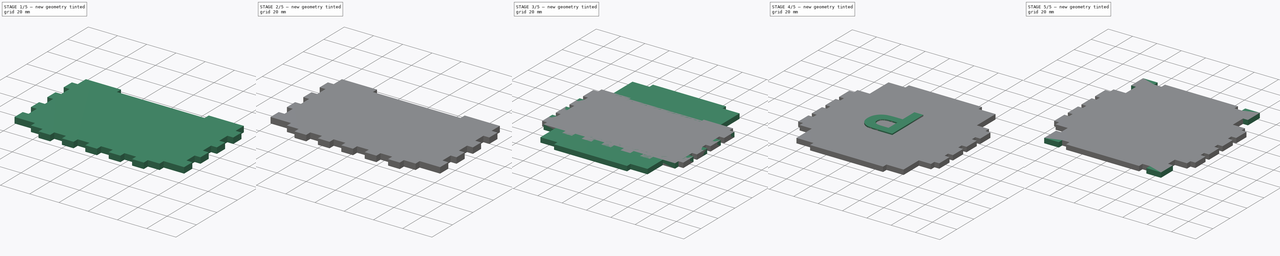
[diagram: build sequence overview — one tinted view per stage of 5, left to right]
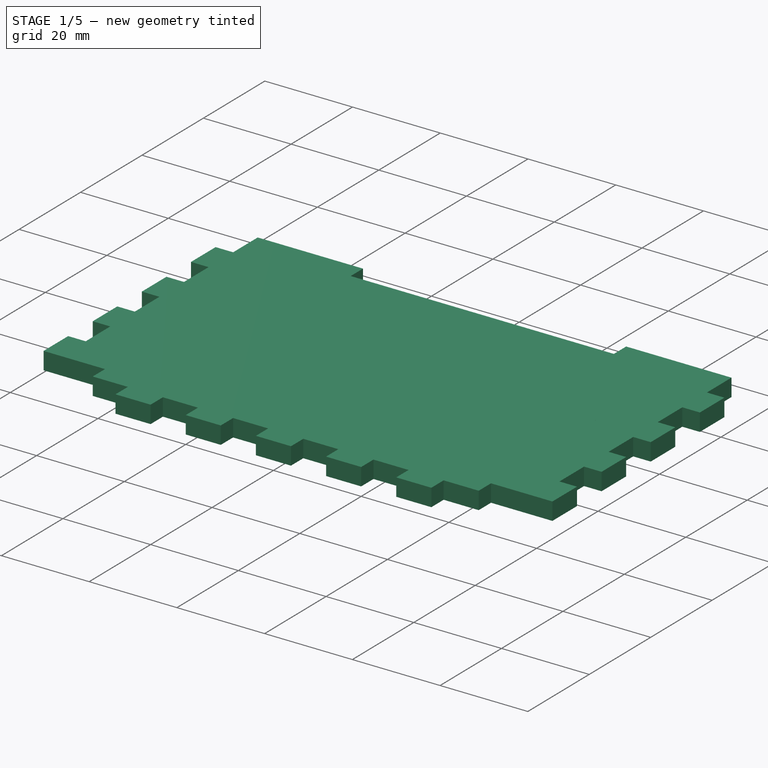
[diagram: stage 1 of 5 — iso view after this stage's code; geometry added in this stage tinted green]
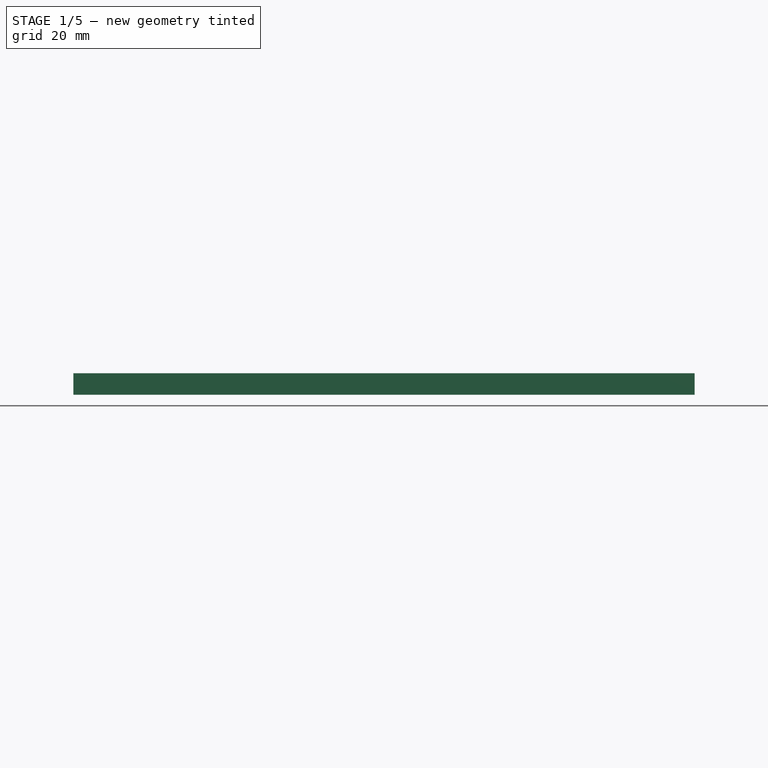
[diagram: stage 1 of 5 — front view after this stage's code; geometry added in this stage tinted green]
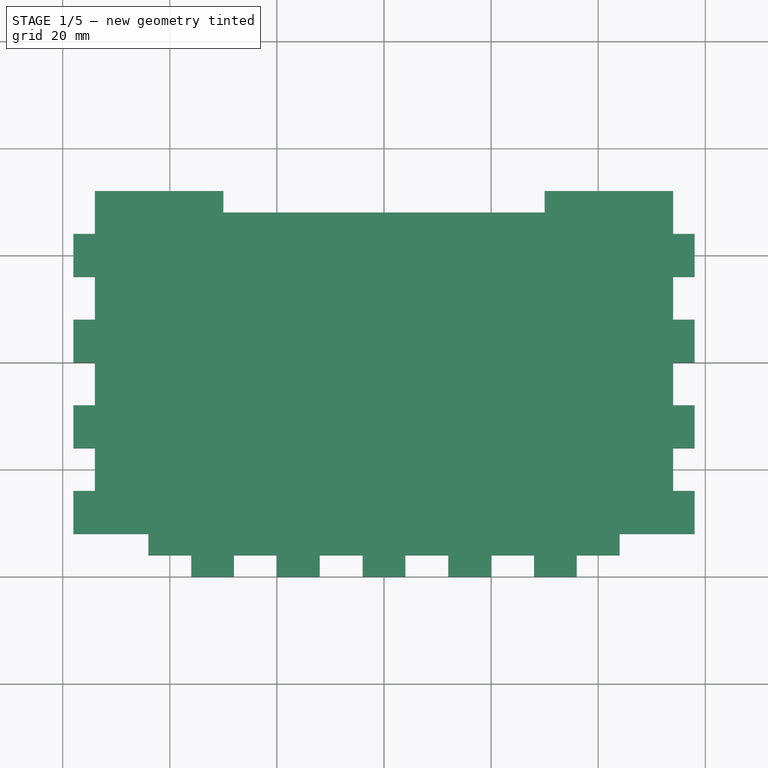
[diagram: stage 1 of 5 — top view after this stage's code; geometry added in this stage tinted green]
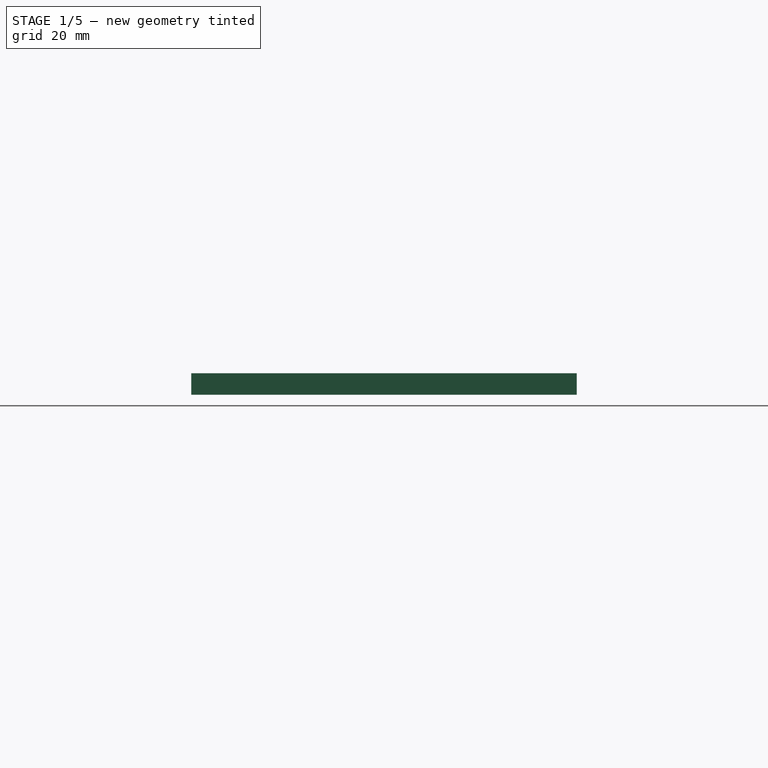
[diagram: stage 1 of 5 — right view after this stage's code; geometry added in this stage tinted green]
FCSTD DOCUMENT  (FreeCAD 0.14R3700 (Git))
Label: cubetto3D
License: CC-BY 3.0
LicenseURL: http://creativecommons.org/licenses/by/3.0/
objects: Sketcher::SketchObject×13, PartDesign::Pad×10, PartDesign::Pocket×3, Part::Extrusion×2, Part::Cut×2
note: 43 computed .brp shape members not serialized (recipe doc carries the construction recipe); baked Part::Feature solids carry a one-line shape summary decoded from their .brp

FEATURE [Sketcher::SketchObject] Sketch009
  sketch-geometry (56):
    g0: LineSegment StartX=-48 StartY=28 StartZ=0 EndX=-30 EndY=28 EndZ=0
    g1: LineSegment StartX=-30 StartY=28 StartZ=0 EndX=-30 EndY=24 EndZ=0
    g2: LineSegment StartX=-30 StartY=24 StartZ=0 EndX=30 EndY=24 EndZ=0
    g3: LineSegment StartX=30 StartY=24 StartZ=0 EndX=30 EndY=28 EndZ=0
    g4: LineSegment StartX=30 StartY=28 StartZ=0 EndX=48 EndY=28 EndZ=0
    g5: LineSegment StartX=48 StartY=28 StartZ=0 EndX=48 EndY=20 EndZ=0
    g6: LineSegment StartX=48 StartY=20 StartZ=0 EndX=44 EndY=20 EndZ=0
    g7: LineSegment StartX=44 StartY=20 StartZ=0 EndX=44 EndY=12 EndZ=0
    g8: LineSegment StartX=44 StartY=12 StartZ=0 EndX=48 EndY=12 EndZ=0
    g9: LineSegment StartX=48 StartY=12 StartZ=0 EndX=48 EndY=4 EndZ=0
    g10: LineSegment StartX=48 StartY=4 StartZ=0 EndX=44 EndY=4 EndZ=0
    g11: LineSegment StartX=44 StartY=4 StartZ=0 EndX=44 EndY=-4 EndZ=0
    g12: LineSegment StartX=44 StartY=-4 StartZ=0 EndX=48 EndY=-4 EndZ=0
    g13: LineSegment StartX=48 StartY=-4 StartZ=0 EndX=48 EndY=-12 EndZ=0
    g14: LineSegment StartX=48 StartY=-12 StartZ=0 EndX=44 EndY=-12 EndZ=0
    g15: LineSegment StartX=44 StartY=-12 StartZ=0 EndX=44 EndY=-20 EndZ=0
    g16: LineSegment StartX=44 StartY=-20 StartZ=0 EndX=48 EndY=-20 EndZ=0
    g17: LineSegment StartX=48 StartY=-20 StartZ=0 EndX=48 EndY=-28 EndZ=0
    g18: LineSegment StartX=48 StartY=-28 StartZ=0 EndX=44 EndY=-28 EndZ=0
    g19: LineSegment StartX=44 StartY=-28 StartZ=0 EndX=44 EndY=-36 EndZ=0
    g20: LineSegment StartX=44 StartY=-36 StartZ=0 EndX=36 EndY=-36 EndZ=0
    g21: LineSegment StartX=36 StartY=-36 StartZ=0 EndX=36 EndY=-40 EndZ=0
    g22: LineSegment StartX=36 StartY=-40 StartZ=0 EndX=28 EndY=-40 EndZ=0
    g23: LineSegment StartX=28 StartY=-40 StartZ=0 EndX=28 EndY=-36 EndZ=0
    g24: LineSegment StartX=28 StartY=-36 StartZ=0 EndX=20 EndY=-36 EndZ=0
    g25: LineSegment StartX=20 StartY=-36 StartZ=0 EndX=20 EndY=-40 EndZ=0
    g26: LineSegment StartX=20 StartY=-40 StartZ=0 EndX=12 EndY=-40 EndZ=0
    g27: LineSegment StartX=12 StartY=-40 StartZ=0 EndX=12 EndY=-36 EndZ=0
    g28: LineSegment StartX=12 StartY=-36 StartZ=0 EndX=4 EndY=-36 EndZ=0
    g29: LineSegment StartX=4 StartY=-36 StartZ=0 EndX=4 EndY=-40 EndZ=0
    g30: LineSegment StartX=4 StartY=-40 StartZ=0 EndX=-4 EndY=-40 EndZ=0
    g31: LineSegment StartX=-4 StartY=-40 StartZ=0 EndX=-4 EndY=-36 EndZ=0
    g32: LineSegment StartX=-4 StartY=-36 StartZ=0 EndX=-12 EndY=-36 EndZ=0
    g33: LineSegment StartX=-12 StartY=-36 StartZ=0 EndX=-12 EndY=-40 EndZ=0
    g34: LineSegment StartX=-12 StartY=-40 StartZ=0 EndX=-20 EndY=-40 EndZ=0
    g35: LineSegment StartX=-20 StartY=-40 StartZ=0 EndX=-20 EndY=-36 EndZ=0
    g36: LineSegment StartX=-20 StartY=-36 StartZ=0 EndX=-28 EndY=-36 EndZ=0
    g37: LineSegment StartX=-28 StartY=-36 StartZ=0 EndX=-28 EndY=-40 EndZ=0
    g38: LineSegment StartX=-28 StartY=-40 StartZ=0 EndX=-36 EndY=-40 EndZ=0
    g39: LineSegment StartX=-36 StartY=-40 StartZ=0 EndX=-36 EndY=-36 EndZ=0
    g40: LineSegment StartX=-36 StartY=-36 StartZ=0 EndX=-44 EndY=-36 EndZ=0
    g41: LineSegment StartX=-44 StartY=-36 StartZ=0 EndX=-44 EndY=-28 EndZ=0
    g42: LineSegment StartX=-44 StartY=-28 StartZ=0 EndX=-48 EndY=-28 EndZ=0
    g43: LineSegment StartX=-48 StartY=-28 StartZ=0 EndX=-48 EndY=-20 EndZ=0
    g44: LineSegment StartX=-48 StartY=-20 StartZ=0 EndX=-44 EndY=-20 EndZ=0
    g45: LineSegment StartX=-44 StartY=-20 StartZ=0 EndX=-44 EndY=-12 EndZ=0
    g46: LineSegment StartX=-44 StartY=-12 StartZ=0 EndX=-48 EndY=-12 EndZ=0
    g47: LineSegment StartX=-48 StartY=-12 StartZ=0 EndX=-48 EndY=-4 EndZ=0
    g48: LineSegment StartX=-48 StartY=-4 StartZ=0 EndX=-44 EndY=-4 EndZ=0
    g49: LineSegment StartX=-44 StartY=-4 StartZ=0 EndX=-44 EndY=4 EndZ=0
    g50: LineSegment StartX=-44 StartY=4 StartZ=0 EndX=-48 EndY=4 EndZ=0
    g51: LineSegment StartX=-48 StartY=4 StartZ=0 EndX=-48 EndY=12 EndZ=0
    g52: LineSegment StartX=-48 StartY=12 StartZ=0 EndX=-44 EndY=12 EndZ=0
    g53: LineSegment StartX=-44 StartY=12 StartZ=0 EndX=-44 EndY=20 EndZ=0
    g54: LineSegment StartX=-44 StartY=20 StartZ=0 EndX=-48 EndY=20 EndZ=0
    g55: LineSegment StartX=-48 StartY=20 StartZ=0 EndX=-48 EndY=28 EndZ=0
  constraints (168):
    c: Horizontal(g0)
    c: Coincident(g0,g1)
    c: Vertical(g1)
    c: Coincident(g1,g2)
    c: Horizontal(g2)
    c: Coincident(g2,g3)
    c: Vertical(g3)
    c: Coincident(g3,g4)
    c: Horizontal(g4)
    c: Coincident(g4,g5)
    c: Vertical(g5)
    c: Coincident(g5,g6)
    c: Horizontal(g6)
    c: Coincident(g6,g7)
    c: Vertical(g7)
    c: Coincident(g7,g8)
    c: Horizontal(g8)
    c: Coincident(g8,g9)
    c: Vertical(g9)
    c: Coincident(g9,g10)
    c: Horizontal(g10)
    c: Coincident(g10,g11)
    c: Vertical(g11)
    c: Coincident(g11,g12)
    c: Coincident(g12,g13)
    c: Vertical(g13)
    c: Coincident(g13,g14)
    c: Horizontal(g14)
    c: Coincident(g14,g15)
    c: Vertical(g15)
    c: Coincident(g15,g16)
    c: Horizontal(g16)
    c: Coincident(g16,g17)
    c: Vertical(g17)
    c: Coincident(g17,g18)
    c: Horizontal(g18)
    c: Coincident(g18,g19)
    c: Vertical(g19)
    c: Equal(g5,g13)
    c: Equal(g13,g9)
    c: Equal(g9,g17)
    c: Equal(g6,g8)
    c: Equal(g8,g10)
    c: Equal(g10,g12)
    c: Equal(g12,g14)
    c: Equal(g14,g16)
    c: Equal(g16,g18)
    c: Equal(g7,g11)
    c: Equal(g11,g15)
    c: DistanceY(g5) = -8
    c: Horizontal(g12)
    c: DistanceX(g6) = -4
    c: DistanceY(g7) = -8
    c: DistanceY(g19) = -8
    c: Equal(g1,g3)
    c: Equal(g4,g0)
    c: DistanceX(g4) = 18
    c: DistanceY(g1) = -4
    c: DistanceX(g2) = 60
    c: Coincident(g19,g20)
    c: Horizontal(g20)
    c: Coincident(g20,g21)
    c: Vertical(g21)
    c: Coincident(g21,g22)
    c: Horizontal(g22)
    c: Coincident(g22,g23)
    c: Coincident(g23,g24)
    c: Coincident(g24,g25)
    c: Coincident(g25,g26)
    c: Horizontal(g26)
    c: Coincident(g26,g27)
    c: Vertical(g27)
    c: Coincident(g27,g28)
    c: Horizontal(g28)
    c: Coincident(g28,g29)
    c: Coincident(g29,g30)
    c: Horizontal(g30)
    c: Coincident(g30,g31)
    c: Vertical(g31)
    c: Coincident(g31,g32)
    c: Coincident(g32,g33)
    c: Vertical(g33)
    c: Coincident(g33,g34)
    c: Coincident(g34,g35)
    c: Coincident(g35,g36)
    c: Coincident(g36,g37)
    c: Coincident(g37,g38)
    c: Coincident(g38,g39)
    c: Vertical(g39)
    c: Coincident(g39,g40)
    c: Horizontal(g40)
    c: Coincident(g40,g41)
    c: Vertical(g41)
    c: Horizontal(g32)
    c: Horizontal(g36)
    c: Horizontal(g24)
    c: Vertical(g37)
    c: Vertical(g29)
    c: Vertical(g23)
    c: Vertical(g25)
    c: Vertical(g35)
    c: Horizontal(g34)
    c: Horizontal(g38)
    c: Equal(g39,g37)
    c: Equal(g37,g35)
    c: Equal(g35,g33)
    c: Equal(g33,g31)
    c: Equal(g31,g29)
    c: Equal(g29,g27)
    c: Equal(g27,g25)
    c: Equal(g25,g23)
    c: Equal(g23,g21)
    c: DistanceY(g21) = -4
    c: Equal(g24,g28)
    c: Equal(g28,g32)
    c: Equal(g32,g36)
    c: Equal(g36,g40)
    c: Equal(g40,g20)
    c: Equal(g22,g26)
    c: Equal(g26,g30)
    c: Equal(g30,g34)
    c: Equal(g34,g38)
    c: DistanceX(g22) = -8
    c: DistanceX(g24) = -8
    c: DistanceY(g41) = 8
    c: Coincident(g41,g42)
    c: Coincident(g42,g43)
    c: Coincident(g43,g44)
    c: Horizontal(g44)
    c: Coincident(g44,g45)
    c: Vertical(g45)
    c: Coincident(g45,g46)
    c: Horizontal(g46)
    c: Coincident(g46,g47)
    c: Vertical(g47)
    c: Coincident(g47,g48)
    c: Horizontal(g48)
    c: Coincident(g48,g49)
    c: Vertical(g49)
    c: Coincident(g49,g50)
    c: Horizontal(g50)
    c: Coincident(g50,g51)
    c: Vertical(g51)
    c: Coincident(g51,g52)
    c: Horizontal(g52)
    c: Coincident(g52,g53)
    c: Vertical(g53)
    c: Coincident(g53,g54)
    c: Horizontal(g54)
    c: Coincident(g55,g54)
    c: Coincident(g55,g0)
    c: Vertical(g55)
    c: Vertical(g43)
    c: Horizontal(g42)
    c: Equal(g51,g55)
    c: Equal(g55,g47)
    c: Equal(g47,g43)
    c: Equal(g54,g52)
    c: Equal(g52,g50)
    c: Equal(g50,g48)
    c: Equal(g48,g46)
    c: Equal(g46,g44)
    c: Equal(g44,g42)
    c: Equal(g53,g49)
    c: Equal(g49,g45)
    c: Equal(g45,g41)
    c: Symmetric(g2,g1,g-2)
    c: Symmetric(g17,g4,g-1)
FEATURE [PartDesign::Pad] Pad007
  Length = 4
  Length2 = 100
  Sketch = -> Sketch009
  Type = 0
FEATURE [Sketcher::SketchObject] Sketch011
  sketch-geometry (40):
    g0: LineSegment StartX=-54 StartY=32 StartZ=0 EndX=-30 EndY=32 EndZ=0
    g1: LineSegment StartX=-30 StartY=32 StartZ=0 EndX=-30 EndY=28 EndZ=0
    g2: LineSegment StartX=-30 StartY=28 StartZ=0 EndX=30 EndY=28 EndZ=0
    g3: LineSegment StartX=30 StartY=28 StartZ=0 EndX=30 EndY=32 EndZ=0
    g4: LineSegment StartX=30 StartY=32 StartZ=0 EndX=54 EndY=32 EndZ=0
    g5: LineSegment StartX=54 StartY=32 StartZ=0 EndX=54 EndY=24 EndZ=0
    g6: LineSegment StartX=54 StartY=24 StartZ=0 EndX=58 EndY=24 EndZ=0
    g7: LineSegment StartX=58 StartY=24 StartZ=0 EndX=58 EndY=16 EndZ=0
    g8: LineSegment StartX=58 StartY=16 StartZ=0 EndX=54 EndY=16 EndZ=0
    g9: LineSegment StartX=54 StartY=16 StartZ=0 EndX=54 EndY=8 EndZ=0
    g10: LineSegment StartX=54 StartY=8 StartZ=0 EndX=58 EndY=8 EndZ=0
    g11: LineSegment StartX=58 StartY=8 StartZ=0 EndX=58 EndY=0 EndZ=0
    g12: LineSegment StartX=58 StartY=0 StartZ=0 EndX=54 EndY=0 EndZ=0
    g13: LineSegment StartX=54 StartY=0 StartZ=0 EndX=54 EndY=-8 EndZ=0
    g14: LineSegment StartX=54 StartY=-8 StartZ=0 EndX=58 EndY=-8 EndZ=0
    g15: LineSegment StartX=58 StartY=-8 StartZ=0 EndX=58 EndY=-16 EndZ=0
    g16: LineSegment StartX=58 StartY=-16 StartZ=0 EndX=54 EndY=-16 EndZ=0
    g17: LineSegment StartX=54 StartY=-16 StartZ=0 EndX=54 EndY=-24 EndZ=0
    g18: LineSegment StartX=54 StartY=-24 StartZ=0 EndX=58 EndY=-24 EndZ=0
    g19: LineSegment StartX=58 StartY=-24 StartZ=0 EndX=58 EndY=-32 EndZ=0
    g20: LineSegment StartX=58 StartY=-32 StartZ=0 EndX=44 EndY=-32 EndZ=0
    g21: LineSegment StartX=44 StartY=-32 StartZ=0 EndX=44 EndY=-36 EndZ=0
    g22: LineSegment StartX=44 StartY=-36 StartZ=0 EndX=-44 EndY=-36 EndZ=0
    g23: LineSegment StartX=-44 StartY=-36 StartZ=0 EndX=-44 EndY=-32 EndZ=0
    g24: LineSegment StartX=-44 StartY=-32 StartZ=0 EndX=-58 EndY=-32 EndZ=0
    g25: LineSegment StartX=-58 StartY=-32 StartZ=0 EndX=-58 EndY=-24 EndZ=0
    g26: LineSegment StartX=-58 StartY=-24 StartZ=0 EndX=-54 EndY=-24 EndZ=0
    g27: LineSegment StartX=-54 StartY=-24 StartZ=0 EndX=-54 EndY=-16 EndZ=0
    g28: LineSegment StartX=-54 StartY=-16 StartZ=0 EndX=-58 EndY=-16 EndZ=0
    g29: LineSegment StartX=-58 StartY=-16 StartZ=0 EndX=-58 EndY=-8 EndZ=0
    g30: LineSegment StartX=-58 StartY=-8 StartZ=0 EndX=-54 EndY=-8 EndZ=0
    g31: LineSegment StartX=-54 StartY=-8 StartZ=0 EndX=-54 EndY=0 EndZ=0
    g32: LineSegment StartX=-54 StartY=0 StartZ=0 EndX=-58 EndY=0 EndZ=0
    g33: LineSegment StartX=-58 StartY=0 StartZ=0 EndX=-58 EndY=8 EndZ=0
    g34: LineSegment StartX=-58 StartY=8 StartZ=0 EndX=-54 EndY=8 EndZ=0
    g35: LineSegment StartX=-54 StartY=8 StartZ=0 EndX=-54 EndY=16 EndZ=0
    g36: LineSegment StartX=-54 StartY=16 StartZ=0 EndX=-58 EndY=16 EndZ=0
    g37: LineSegment StartX=-58 StartY=16 StartZ=0 EndX=-58 EndY=24 EndZ=0
    g38: LineSegment StartX=-58 StartY=24 StartZ=0 EndX=-54 EndY=24 EndZ=0
    g39: LineSegment StartX=-54 StartY=24 StartZ=0 EndX=-54 EndY=32 EndZ=0
  constraints (120):
    c: Horizontal(g0)
    c: Coincident(g0,g1)
    c: Vertical(g1)
    c: Coincident(g1,g2)
    c: Horizontal(g2)
    c: Coincident(g2,g3)
    c: Vertical(g3)
    c: Coincident(g3,g4)
    c: Horizontal(g4)
    c: Coincident(g4,g5)
    c: Vertical(g5)
    c: Coincident(g5,g6)
    c: Coincident(g6,g7)
    c: Coincident(g7,g8)
    c: Coincident(g8,g9)
    c: Coincident(g9,g10)
    c: Horizontal(g10)
    c: Coincident(g10,g11)
    c: Vertical(g11)
    c: Coincident(g11,g12)
    c: Coincident(g12,g13)
    c: Coincident(g13,g14)
    c: Coincident(g14,g15)
    c: Coincident(g15,g16)
    c: Coincident(g16,g17)
    c: Vertical(g17)
    c: Equal(g0,g4)
    c: Equal(g3,g1)
    c: DistanceX(g0) = 24
    c: DistanceX(g2) = 60
    c: DistanceY(g3) = 4
    c: Vertical(g9)
    c: Vertical(g13)
    c: Equal(g5,g9)
    c: Equal(g9,g13)
    c: Equal(g13,g17)
    c: Horizontal(g6)
    c: Horizontal(g8)
    c: Horizontal(g12)
    c: Horizontal(g14)
    c: Horizontal(g16)
    c: Vertical(g7)
    c: Vertical(g15)
    c: Equal(g6,g8)
    c: Equal(g8,g10)
    c: Equal(g10,g12)
    c: Equal(g12,g14)
    c: Equal(g14,g16)
    c: DistanceX(g6) = 4
    c: Equal(g7,g11)
    c: Equal(g11,g15)
    c: DistanceY(g7) = -8
    c: DistanceY(g5) = -8
    c: Coincident(g17,g18)
    c: Horizontal(g18)
    c: Coincident(g18,g19)
    c: Vertical(g19)
    c: Coincident(g19,g20)
    c: Horizontal(g20)
    c: Coincident(g20,g21)
    c: Vertical(g21)
    c: Coincident(g21,g22)
    c: Horizontal(g22)
    c: Coincident(g22,g23)
    c: Vertical(g23)
    c: Coincident(g23,g24)
    c: Horizontal(g24)
    c: Equal(g24,g20)
    c: Equal(g16,g18)
    c: Equal(g19,g15)
    c: DistanceX(g20) = -14
    c: DistanceY(g21) = -4
    c: DistanceX(g22) = -88
    c: Coincident(g24,g25)
    c: Vertical(g25)
    c: Coincident(g25,g26)
    c: Coincident(g26,g27)
    c: Coincident(g27,g28)
    c: Coincident(g28,g29)
    c: Vertical(g29)
    c: Coincident(g29,g30)
    c: Coincident(g30,g31)
    c: Coincident(g31,g32)
    c: Coincident(g32,g33)
    c: Vertical(g33)
    c: Coincident(g33,g34)
    c: Coincident(g34,g35)
    c: Coincident(g35,g36)
    c: Coincident(g36,g37)
    c: Coincident(g37,g38)
    c: Horizontal(g38)
    c: Coincident(g38,g39)
    c: Coincident(g39,g0)
    c: Horizontal(g36)
    c: Horizontal(g34)
    c: Horizontal(g32)
    c: Horizontal(g30)
    c: Horizontal(g28)
    c: Horizontal(g26)
    c: Vertical(g39)
    c: Vertical(g35)
    c: Vertical(g31)
    c: Vertical(g27)
    c: Equal(g26,g28)
    c: Equal(g28,g30)
    c: Equal(g30,g32)
    c: Equal(g32,g34)
    c: Equal(g34,g36)
    c: Equal(g36,g38)
    c: Vertical(g37)
    c: Equal(g37,g33)
    c: Equal(g33,g29)
    c: Equal(g29,g25)
    c: Equal(g35,g31)
    c: Equal(g31,g27)
    c: DistanceY(g25) = 8
    c: DistanceY(g31) = 8
    c: DistanceY(g39) = 8
    c: Symmetric(g1,g2,g-2)
    c: Symmetric(g38,g26,g-1)
FEATURE [PartDesign::Pad] Pad008  label="cubetto-4mm(8)"
  Length = 4
  Length2 = 100
  Sketch = -> Sketch011
  Type = 0
FEATURE [Sketcher::SketchObject] Sketch012
  sketch-geometry (12):
    g0: LineSegment StartX=-30.5 StartY=4 StartZ=0 EndX=-30.5 EndY=-4 EndZ=0
    g1: LineSegment StartX=-30.5 StartY=-4 StartZ=0 EndX=30.5 EndY=-4 EndZ=0
    g2: LineSegment StartX=30.5 StartY=-4 StartZ=0 EndX=30.5 EndY=4 EndZ=0
    g3: LineSegment StartX=30.5 StartY=4 StartZ=0 EndX=18.5 EndY=4 EndZ=0
    g4: LineSegment StartX=18.5 StartY=4 StartZ=0 EndX=18.5 EndY=7 EndZ=0
    g5: LineSegment StartX=18.5 StartY=7 StartZ=0 EndX=12.5 EndY=7 EndZ=0
    g6: LineSegment StartX=12.5 StartY=7 StartZ=0 EndX=12.5 EndY=4 EndZ=0
    g7: LineSegment StartX=12.5 StartY=4 StartZ=0 EndX=-12.5 EndY=4 EndZ=0
    g8: LineSegment StartX=-12.5 StartY=4 StartZ=0 EndX=-12.5 EndY=7 EndZ=0
    g9: LineSegment StartX=-12.5 StartY=7 StartZ=0 EndX=-18.5 EndY=7 EndZ=0
    g10: LineSegment StartX=-18.5 StartY=7 StartZ=0 EndX=-18.5 EndY=4 EndZ=0
    g11: LineSegment StartX=-18.5 StartY=4 StartZ=0 EndX=-30.5 EndY=4 EndZ=0
  constraints (37):
    c: Vertical(g0)
    c: Coincident(g0,g1)
    c: Horizontal(g1)
    c: Coincident(g1,g2)
    c: Vertical(g2)
    c: Coincident(g2,g3)
    c: Horizontal(g3)
    c: Coincident(g3,g4)
    c: Vertical(g4)
    c: Coincident(g4,g5)
    c: Horizontal(g5)
    c: Coincident(g5,g6)
    c: Vertical(g6)
    c: Coincident(g6,g7)
    c: Horizontal(g7)
    c: Coincident(g7,g8)
    c: Vertical(g8)
    c: Coincident(g8,g9)
    c: Horizontal(g9)
    c: Coincident(g9,g10)
    c: Coincident(g10,g11)
    c: Coincident(g11,g0)
    c: Horizontal(g11)
    c: Vertical(g10)
    c: Equal(g9,g5)
    c: Equal(g4,g6)
    c: Equal(g6,g8)
    c: Equal(g8,g10)
    c: Equal(g3,g11)
    c: Equal(g2,g0)
    c: DistanceX(g1) = 61
    c: DistanceY(g2) = 8
    c: DistanceX(g11) = -12
    c: DistanceY(g8) = 3
    c: DistanceX(g5) = -6
    c: Symmetric(g0,g2,g-2)
    c: Symmetric(g1,g2,g-1)
FEATURE [PartDesign::Pad] Pad009  label="pieza"
  Length = 4
  Length2 = 100
  Sketch = -> Sketch012
  Type = 0
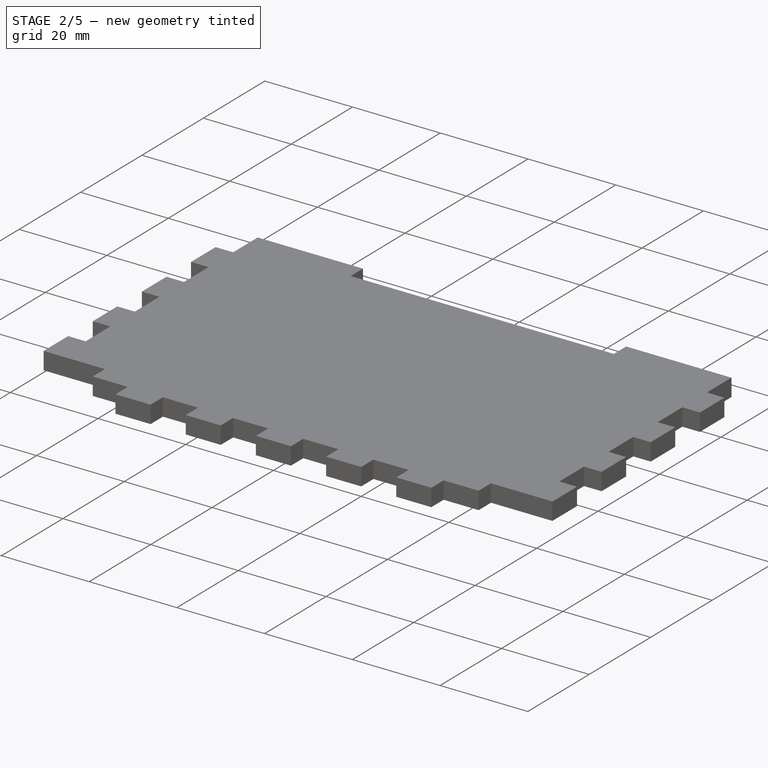
[diagram: stage 2 of 5 — iso view after this stage's code; geometry added in this stage tinted green]
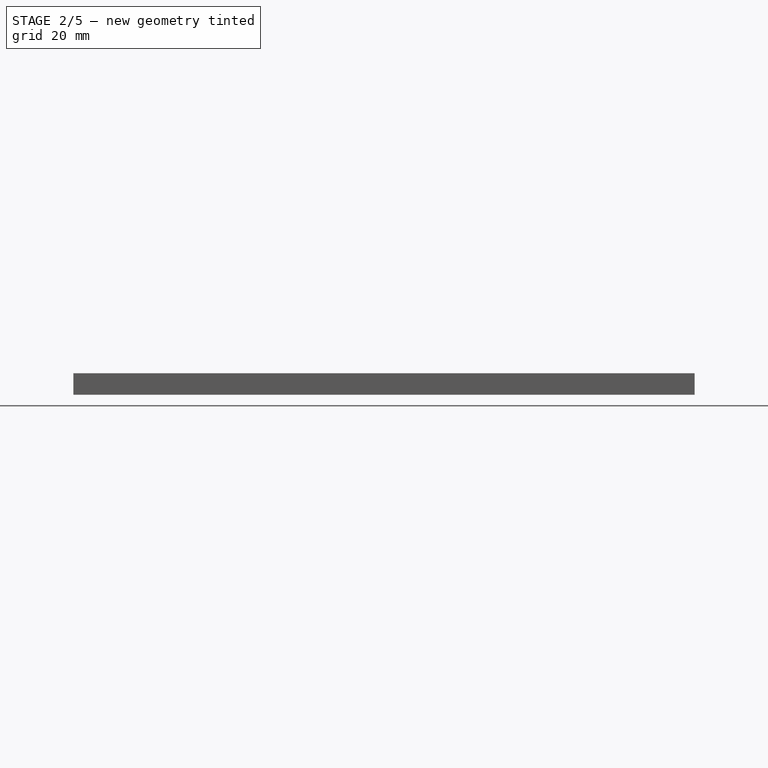
[diagram: stage 2 of 5 — front view after this stage's code; geometry added in this stage tinted green]
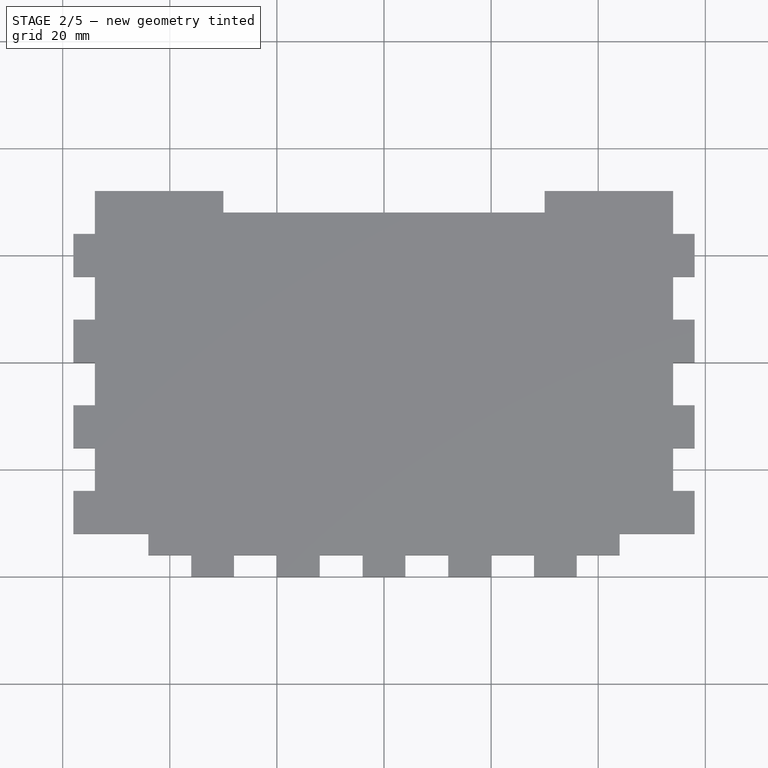
[diagram: stage 2 of 5 — top view after this stage's code; geometry added in this stage tinted green]
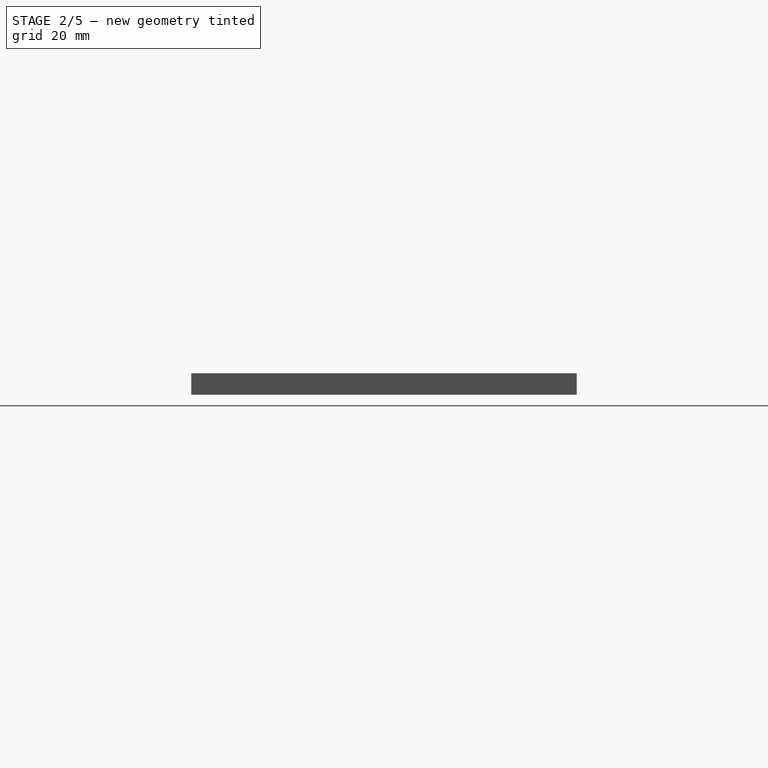
[diagram: stage 2 of 5 — right view after this stage's code; geometry added in this stage tinted green]
FEATURE [Sketcher::SketchObject] Sketch006
  sketch-geometry (20):
    g0: LineSegment StartX=15.5 StartY=27.5 StartZ=0 EndX=-15.5 EndY=27.5 EndZ=0
    g1: LineSegment StartX=-15.5 StartY=27.5 StartZ=0 EndX=-15.5 EndY=19.3 EndZ=0
    g2: LineSegment StartX=-15.5 StartY=19.3 StartZ=0 EndX=-0.5 EndY=19.3 EndZ=0
    g3: LineSegment StartX=-0.5 StartY=19.3 StartZ=0 EndX=-0.5 EndY=16.6 EndZ=0
    g4: LineSegment StartX=-0.5 StartY=16.6 StartZ=0 EndX=-15.5 EndY=16.6 EndZ=0
    g5: LineSegment StartX=-15.5 StartY=16.6 StartZ=0 EndX=-15.5 EndY=-16.6 EndZ=0
    g6: LineSegment StartX=-15.5 StartY=-16.6 StartZ=0 EndX=-0.5 EndY=-16.6 EndZ=0
    g7: LineSegment StartX=-0.5 StartY=-16.6 StartZ=0 EndX=-0.5 EndY=-19.3 EndZ=0
    g8: LineSegment StartX=-0.5 StartY=-19.3 StartZ=0 EndX=-15.5 EndY=-19.3 EndZ=0
    g9: LineSegment StartX=-15.5 StartY=-19.3 StartZ=0 EndX=-15.5 EndY=-27.5 EndZ=0
    g10: LineSegment StartX=-15.5 StartY=-27.5 StartZ=0 EndX=15.5 EndY=-27.5 EndZ=0
    g11: LineSegment StartX=15.5 StartY=-27.5 StartZ=0 EndX=15.5 EndY=-19.5 EndZ=0
    g12: LineSegment StartX=15.5 StartY=-19.5 StartZ=0 EndX=7.5 EndY=-19.5 EndZ=0
    g13: LineSegment StartX=7.5 StartY=-19.5 StartZ=0 EndX=7.5 EndY=-4 EndZ=0
    g14: LineSegment StartX=7.5 StartY=-4 StartZ=0 EndX=15.5 EndY=-4 EndZ=0
    g15: LineSegment StartX=15.5 StartY=-4 StartZ=0 EndX=15.5 EndY=4 EndZ=0
    g16: LineSegment StartX=15.5 StartY=4 StartZ=0 EndX=7.5 EndY=4 EndZ=0
    g17: LineSegment StartX=7.5 StartY=4 StartZ=0 EndX=7.5 EndY=19.5 EndZ=0
    g18: LineSegment StartX=7.5 StartY=19.5 StartZ=0 EndX=15.5 EndY=19.5 EndZ=0
    g19: LineSegment StartX=15.5 StartY=19.5 StartZ=0 EndX=15.5 EndY=27.5 EndZ=0
  constraints (60):
    c: Horizontal(g0)
    c: Coincident(g0,g1)
    c: Vertical(g1)
    c: Coincident(g1,g2)
    c: Horizontal(g2)
    c: Coincident(g2,g3)
    c: Coincident(g3,g4)
    c: Horizontal(g4)
    c: Coincident(g4,g5)
    c: Coincident(g5,g6)
    c: Coincident(g6,g7)
    c: Vertical(g7)
    c: Coincident(g7,g8)
    c: Coincident(g8,g9)
    c: Vertical(g9)
    c: Coincident(g9,g10)
    c: Horizontal(g10)
    c: Coincident(g10,g11)
    c: Coincident(g11,g12)
    c: Horizontal(g12)
    c: Coincident(g12,g13)
    c: Vertical(g13)
    c: Coincident(g13,g14)
    c: Horizontal(g14)
    c: Coincident(g14,g15)
    c: Vertical(g15)
    c: Coincident(g15,g16)
    c: Horizontal(g16)
    c: Coincident(g16,g17)
    c: Coincident(g17,g18)
    c: Coincident(g18,g19)
    c: Coincident(g19,g0)
    c: Vertical(g19)
    c: Vertical(g11)
    c: Horizontal(g18)
    c: Horizontal(g6)
    c: Horizontal(g8)
    c: Equal(g0,g10)
    c: Equal(g2,g4)
    c: Equal(g4,g6)
    c: Equal(g6,g8)
    c: Vertical(g17)
    c: Vertical(g3)
    c: Equal(g3,g7)
    c: Equal(g19,g15)
    c: Equal(g15,g11)
    c: DistanceY(g19) = 8
    c: Equal(g16,g18)
    c: Equal(g18,g14)
    c: Equal(g14,g12)
    c: DistanceX(g16) = -8
    c: Equal(g1,g9)
    c: DistanceY(g1) = -8.2
    c: DistanceY(g3) = -2.7
    c: DistanceX(g4) = -15
    c: DistanceY(g5) = -33.2
    c: DistanceY(g17) = 15.5
    c: DistanceX(g10) = 31
    c: Symmetric(g0,g0,g-2)
    c: Symmetric(g4,g5,g-1)
FEATURE [PartDesign::Pad] Pad005  label="cubetto-4mm(4)"
  Length = 4
  Length2 = 100
  Sketch = -> Sketch006
  Type = 0
FEATURE [Sketcher::SketchObject] Sketch007
  sketch-geometry (16):
    g0: LineSegment StartX=33.7 StartY=16.25 StartZ=0 EndX=28.2 EndY=16.25 EndZ=0
    g1: LineSegment StartX=28.2 StartY=16.25 StartZ=0 EndX=28.2 EndY=19.5 EndZ=0
    g2: LineSegment StartX=28.2 StartY=19.5 StartZ=0 EndX=24.2 EndY=19.5 EndZ=0
    g3: LineSegment StartX=24.2 StartY=19.5 StartZ=0 EndX=24.2 EndY=27.5 EndZ=0
    g4: LineSegment StartX=24.2 StartY=27.5 StartZ=0 EndX=-24.2 EndY=27.5 EndZ=0
    g5: LineSegment StartX=-24.2 StartY=27.5 StartZ=0 EndX=-24.2 EndY=11.1 EndZ=0
    g6: LineSegment StartX=-24.2 StartY=11.1 StartZ=0 EndX=18.8 EndY=11.1 EndZ=0
    g7: LineSegment StartX=18.8 StartY=11.1 StartZ=0 EndX=18.8 EndY=-11.1 EndZ=0
    g8: LineSegment StartX=18.8 StartY=-11.1 StartZ=0 EndX=-24.2 EndY=-11.1 EndZ=0
    g9: LineSegment StartX=-24.2 StartY=-11.1 StartZ=0 EndX=-24.2 EndY=-27.5 EndZ=0
    g10: LineSegment StartX=-24.2 StartY=-27.5 StartZ=0 EndX=24.2 EndY=-27.5 EndZ=0
    g11: LineSegment StartX=24.2 StartY=-27.5 StartZ=0 EndX=24.2 EndY=-19.5 EndZ=0
    g12: LineSegment StartX=24.2 StartY=-19.5 StartZ=0 EndX=28.2 EndY=-19.5 EndZ=0
    g13: LineSegment StartX=28.2 StartY=-19.5 StartZ=0 EndX=28.2 EndY=-16.25 EndZ=0
    g14: LineSegment StartX=28.2 StartY=-16.25 StartZ=0 EndX=33.7 EndY=-16.25 EndZ=0
    g15: LineSegment StartX=33.7 StartY=16.25 StartZ=0 EndX=33.7 EndY=-16.25 EndZ=0
  constraints (48):
    c: Horizontal(g0)
    c: Coincident(g0,g1)
    c: Vertical(g1)
    c: Coincident(g1,g2)
    c: Horizontal(g2)
    c: Coincident(g2,g3)
    c: Vertical(g3)
    c: Coincident(g3,g4)
    c: Horizontal(g4)
    c: Coincident(g4,g5)
    c: Vertical(g5)
    c: Coincident(g5,g6)
    c: Horizontal(g6)
    c: Coincident(g6,g7)
    c: Vertical(g7)
    c: Coincident(g7,g8)
    c: Horizontal(g8)
    c: Coincident(g8,g9)
    c: Vertical(g9)
    c: Coincident(g9,g10)
    c: Horizontal(g10)
    c: Coincident(g10,g11)
    c: Vertical(g11)
    c: Coincident(g11,g12)
    c: Coincident(g12,g13)
    c: Vertical(g13)
    c: Coincident(g13,g14)
    c: Horizontal(g14)
    c: Equal(g10,g4)
    c: Equal(g5,g9)
    c: Equal(g6,g8)
    c: Equal(g3,g11)
    c: Equal(g2,g12)
    c: Horizontal(g12)
    c: Equal(g1,g13)
    c: Equal(g0,g14)
    c: Coincident(g15,g0)
    c: Coincident(g15,g14)
    c: DistanceY(g15) = -32.5
    c: DistanceY(g9) = -16.4
    c: DistanceX(g8) = -43
    c: DistanceY(g7) = -22.2
    c: DistanceY(g3) = 8
    c: DistanceX(g12) = 4
    c: DistanceX(g14) = 5.5
    c: Symmetric(g0,g14,g-1)
    c: Symmetric(g4,g3,g-2)
    c: DistanceX(g9,g14) = 57.9
FEATURE [PartDesign::Pad] Pad006
  Length = 4
  Length2 = 100
  Sketch = -> Sketch007
  Type = 0
FEATURE [Sketcher::SketchObject] Sketch008
  ExternalGeometry = -> [Pad006]
  Placement = pos=(0,0,4) rot=(0,0,1;0rad)
  Support = -> Pad006 [Face18]
  sketch-geometry (4):
    g0: LineSegment StartX=24.2 StartY=4 StartZ=0 EndX=28.2 EndY=4 EndZ=0
    g1: LineSegment StartX=28.2 StartY=4 StartZ=0 EndX=28.2 EndY=-4 EndZ=0
    g2: LineSegment StartX=28.2 StartY=-4 StartZ=0 EndX=24.2 EndY=-4 EndZ=0
    g3: LineSegment StartX=24.2 StartY=-4 StartZ=0 EndX=24.2 EndY=4 EndZ=0
  constraints (12):
    c: Coincident(g0,g1)
    c: Coincident(g1,g2)
    c: Coincident(g2,g3)
    c: Coincident(g3,g0)
    c: Horizontal(g0)
    c: Horizontal(g2)
    c: Vertical(g1)
    c: Vertical(g3)
    c: DistanceX(g0) = 4
    c: DistanceY(g3) = 8
    c: Symmetric(g0,g1,g-1)
    c: DistanceX(g0,g-3) = -9.4
FEATURE [PartDesign::Pocket] Pocket001  label="cubetto-4mm(2)"
  Length = 5
  Sketch = -> Sketch008
  Type = 0
FEATURE [Sketcher::SketchObject] Sketch010
  ExternalGeometry = -> [Pad007]
  Placement = pos=(0,0,4) rot=(0,0,1;0rad)
  Support = -> Pad007 [Face58]
  sketch-geometry (4):
    g0: Circle CenterX=-11 CenterY=-3 CenterZ=0 NormalX=0 NormalY=0 NormalZ=1 Radius=3
    g1: Circle CenterX=11 CenterY=-3 CenterZ=0 NormalX=0 NormalY=0 NormalZ=1 Radius=3
    g2: LineSegment StartX=-15.4888 StartY=-12 StartZ=0 EndX=15.4888 EndY=-12 EndZ=0
    g3: ArcOfCircle CenterX=0 CenterY=-12 CenterZ=0 NormalX=0 NormalY=0 NormalZ=1 Radius=15.4888 StartAngle=3.14159 EndAngle=6.28319
  constraints (12):
    c: Equal(g1,g0)
    c: Radius(g1) = 3
    c: DistanceX(g1,g0) = -22
    c: Symmetric(g0,g1,g-2)
    c: Horizontal(g2)
    c: Symmetric(g2,g2,g-2)
    c: PointOnObject(g3,g2)
    c: Coincident(g3,g2)
    c: Coincident(g3,g2)
    c: DistanceY(g2,g-3) = -28
    c: DistanceY(g0,g-3) = -37
    c: DistanceX(g2) = 30.9777
FEATURE [PartDesign::Pocket] Pocket002  label="cubetto-4mm(7)"
  Length = 1
  Sketch = -> Sketch010
  Type = 0
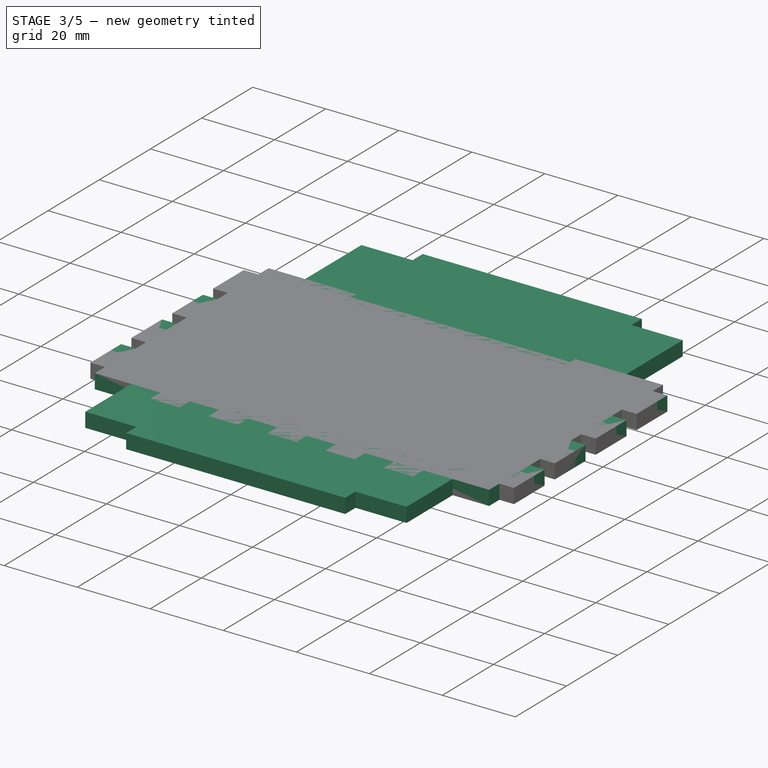
[diagram: stage 3 of 5 — iso view after this stage's code; geometry added in this stage tinted green]
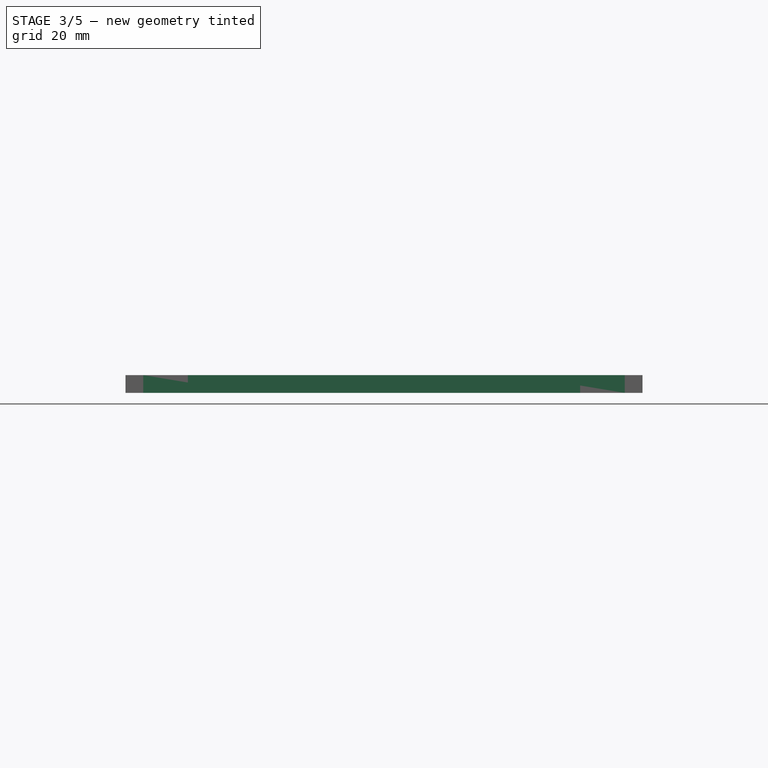
[diagram: stage 3 of 5 — front view after this stage's code; geometry added in this stage tinted green]
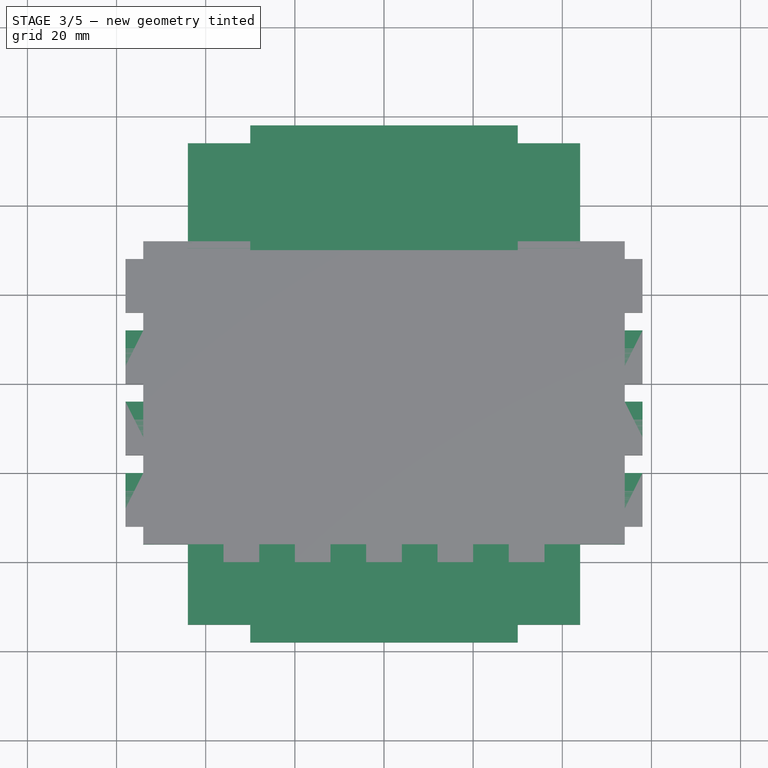
[diagram: stage 3 of 5 — top view after this stage's code; geometry added in this stage tinted green]
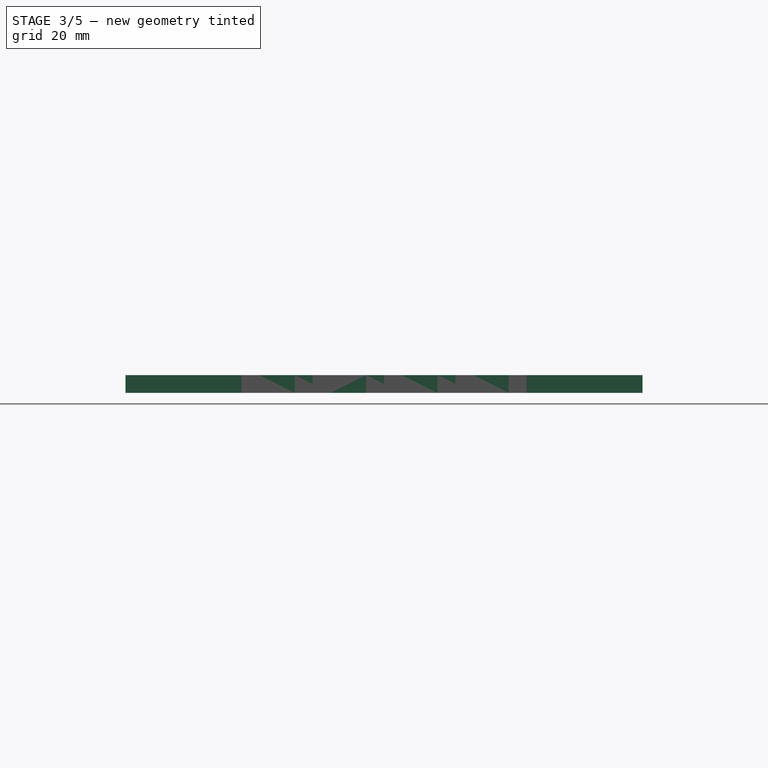
[diagram: stage 3 of 5 — right view after this stage's code; geometry added in this stage tinted green]
FEATURE [Sketcher::SketchObject] Sketch003
  sketch-geometry (40):
    g0: LineSegment StartX=58 StartY=28 StartZ=0 EndX=44 EndY=28 EndZ=0
    g1: LineSegment StartX=44 StartY=28 StartZ=0 EndX=44 EndY=32 EndZ=0
    g2: LineSegment StartX=44 StartY=32 StartZ=0 EndX=-44 EndY=32 EndZ=0
    g3: LineSegment StartX=-44 StartY=32 StartZ=0 EndX=-44 EndY=28 EndZ=0
    g4: LineSegment StartX=-44 StartY=28 StartZ=0 EndX=-58 EndY=28 EndZ=0
    g5: LineSegment StartX=-58 StartY=28 StartZ=0 EndX=-58 EndY=20 EndZ=0
    g6: LineSegment StartX=-58 StartY=20 StartZ=0 EndX=-54 EndY=20 EndZ=0
    g7: LineSegment StartX=-54 StartY=20 StartZ=0 EndX=-54 EndY=12 EndZ=0
    g8: LineSegment StartX=-54 StartY=12 StartZ=0 EndX=-58 EndY=12 EndZ=0
    g9: LineSegment StartX=-58 StartY=12 StartZ=0 EndX=-58 EndY=4 EndZ=0
    g10: LineSegment StartX=-58 StartY=4 StartZ=0 EndX=-54 EndY=4 EndZ=0
    g11: LineSegment StartX=-54 StartY=4 StartZ=0 EndX=-54 EndY=-4 EndZ=0
    g12: LineSegment StartX=-54 StartY=-4 StartZ=0 EndX=-58 EndY=-4 EndZ=0
    g13: LineSegment StartX=-58 StartY=-4 StartZ=0 EndX=-58 EndY=-12 EndZ=0
    g14: LineSegment StartX=-58 StartY=-12 StartZ=0 EndX=-54 EndY=-12 EndZ=0
    g15: LineSegment StartX=-54 StartY=-12 StartZ=0 EndX=-54 EndY=-20 EndZ=0
    g16: LineSegment StartX=-54 StartY=-20 StartZ=0 EndX=-58 EndY=-20 EndZ=0
    g17: LineSegment StartX=-58 StartY=-20 StartZ=0 EndX=-58 EndY=-28 EndZ=0
    g18: LineSegment StartX=-58 StartY=-28 StartZ=0 EndX=-54 EndY=-28 EndZ=0
    g19: LineSegment StartX=-54 StartY=-28 StartZ=0 EndX=-54 EndY=-36 EndZ=0
    g20: LineSegment StartX=-54 StartY=-36 StartZ=0 EndX=-30 EndY=-36 EndZ=0
    g21: LineSegment StartX=-30 StartY=-36 StartZ=0 EndX=-30 EndY=-32 EndZ=0
    g22: LineSegment StartX=-30 StartY=-32 StartZ=0 EndX=30 EndY=-32 EndZ=0
    g23: LineSegment StartX=30 StartY=-32 StartZ=0 EndX=30 EndY=-36 EndZ=0
    g24: LineSegment StartX=30 StartY=-36 StartZ=0 EndX=54 EndY=-36 EndZ=0
    g25: LineSegment StartX=54 StartY=-36 StartZ=0 EndX=54 EndY=-28 EndZ=0
    g26: LineSegment StartX=54 StartY=-28 StartZ=0 EndX=58 EndY=-28 EndZ=0
    g27: LineSegment StartX=58 StartY=-28 StartZ=0 EndX=58 EndY=-20 EndZ=0
    g28: LineSegment StartX=58 StartY=-20 StartZ=0 EndX=54 EndY=-20 EndZ=0
    g29: LineSegment StartX=54 StartY=-20 StartZ=0 EndX=54 EndY=-12 EndZ=0
    g30: LineSegment StartX=54 StartY=-12 StartZ=0 EndX=58 EndY=-12 EndZ=0
    g31: LineSegment StartX=58 StartY=-12 StartZ=0 EndX=58 EndY=-4 EndZ=0
    g32: LineSegment StartX=58 StartY=-4 StartZ=0 EndX=54 EndY=-4 EndZ=0
    g33: LineSegment StartX=54 StartY=-4 StartZ=0 EndX=54 EndY=4 EndZ=0
    g34: LineSegment StartX=54 StartY=4 StartZ=0 EndX=58 EndY=4 EndZ=0
    g35: LineSegment StartX=58 StartY=4 StartZ=0 EndX=58 EndY=12 EndZ=0
    g36: LineSegment StartX=58 StartY=12 StartZ=0 EndX=54 EndY=12 EndZ=0
    g37: LineSegment StartX=54 StartY=12 StartZ=0 EndX=54 EndY=20 EndZ=0
    g38: LineSegment StartX=54 StartY=20 StartZ=0 EndX=58 EndY=20 EndZ=0
    g39: LineSegment StartX=58 StartY=20 StartZ=0 EndX=58 EndY=28 EndZ=0
  constraints (120):
    c: Horizontal(g0)
    c: Coincident(g0,g1)
    c: Coincident(g1,g2)
    c: Horizontal(g2)
    c: Coincident(g2,g3)
    c: Vertical(g3)
    c: Coincident(g3,g4)
    c: Horizontal(g4)
    c: Equal(g4,g0)
    c: Vertical(g1)
    c: Equal(g1,g3)
    c: DistanceX(g4) = -14
    c: DistanceY(g3) = -4
    c: DistanceX(g2) = -88
    c: Coincident(g4,g5)
    c: Vertical(g5)
    c: Coincident(g5,g6)
    c: Horizontal(g6)
    c: Coincident(g6,g7)
    c: Vertical(g7)
    c: Coincident(g7,g8)
    c: Horizontal(g8)
    c: Coincident(g8,g9)
    c: Vertical(g9)
    c: Coincident(g9,g10)
    c: Coincident(g10,g11)
    c: Vertical(g11)
    c: Coincident(g11,g12)
    c: Coincident(g12,g13)
    c: Coincident(g13,g14)
    c: Horizontal(g14)
    c: Coincident(g14,g15)
    c: Coincident(g15,g16)
    c: Coincident(g16,g17)
    c: Vertical(g17)
    c: Coincident(g17,g18)
    c: Coincident(g18,g19)
    c: Vertical(g19)
    c: Vertical(g13)
    c: Horizontal(g12)
    c: Horizontal(g16)
    c: Horizontal(g18)
    c: Horizontal(g10)
    c: Vertical(g15)
    c: Equal(g6,g8)
    c: Equal(g8,g10)
    c: Equal(g10,g12)
    c: Equal(g12,g14)
    c: Equal(g14,g16)
    c: Equal(g16,g18)
    c: Equal(g5,g9)
    c: Equal(g9,g13)
    c: Equal(g13,g17)
    c: Equal(g7,g11)
    c: Equal(g11,g15)
    c: Equal(g15,g19)
    c: DistanceX(g6) = 4
    c: DistanceY(g5) = -8
    c: DistanceY(g7) = -8
    c: Coincident(g19,g20)
    c: Horizontal(g20)
    c: Coincident(g20,g21)
    c: Vertical(g21)
    c: Coincident(g21,g22)
    c: Horizontal(g22)
    c: Coincident(g22,g23)
    c: Vertical(g23)
    c: Coincident(g23,g24)
    c: Horizontal(g24)
    c: Equal(g20,g24)
    c: Equal(g23,g21)
    c: DistanceY(g23) = -4
    c: DistanceX(g20) = 24
    c: DistanceX(g22) = 60
    c: Coincident(g24,g25)
    c: Vertical(g25)
    c: Coincident(g25,g26)
    c: Horizontal(g26)
    c: Coincident(g26,g27)
    c: Vertical(g27)
    c: Coincident(g27,g28)
    c: Horizontal(g28)
    c: Coincident(g28,g29)
    c: Vertical(g29)
    c: Coincident(g29,g30)
    c: Horizontal(g30)
    c: Coincident(g30,g31)
    c: Coincident(g31,g32)
    c: Horizontal(g32)
    c: Coincident(g32,g33)
    c: Coincident(g33,g34)
    c: Horizontal(g34)
    c: Coincident(g34,g35)
    c: Vertical(g35)
    c: Coincident(g35,g36)
    c: Horizontal(g36)
    c: Coincident(g36,g37)
    c: Vertical(g37)
    c: Coincident(g37,g38)
    c: Coincident(g38,g39)
    c: Coincident(g39,g0)
    c: Vertical(g39)
    c: Horizontal(g38)
    c: Equal(g38,g36)
    c: Equal(g36,g34)
    c: Equal(g34,g32)
    c: Equal(g32,g30)
    c: Equal(g30,g28)
    c: Equal(g28,g26)
    c: Vertical(g33)
    c: Vertical(g31)
    c: Equal(g29,g25)
    c: Equal(g25,g37)
    c: Equal(g27,g31)
    c: Equal(g31,g39)
    c: Equal(g39,g35)
    c: DistanceY(g25) = 8
    c: DistanceY(g27) = 8
    c: Symmetric(g21,g22,g-2)
    c: Symmetric(g0,g26,g-1)
FEATURE [PartDesign::Pad] Pad002  label="cubetto-4mm(5)"
  Length = 4
  Length2 = 100
  Sketch = -> Sketch003
  Type = 0
FEATURE [Sketcher::SketchObject] Sketch004
  sketch-geometry (20):
    g0: LineSegment StartX=44 StartY=54 StartZ=0 EndX=30 EndY=54 EndZ=0
    g1: LineSegment StartX=30 StartY=54 StartZ=0 EndX=30 EndY=58 EndZ=0
    g2: LineSegment StartX=30 StartY=58 StartZ=0 EndX=-30 EndY=58 EndZ=0
    g3: LineSegment StartX=-30 StartY=58 StartZ=0 EndX=-30 EndY=54 EndZ=0
    g4: LineSegment StartX=-30 StartY=54 StartZ=0 EndX=-44 EndY=54 EndZ=0
    g5: LineSegment StartX=-44 StartY=54 StartZ=0 EndX=-44 EndY=30 EndZ=0
    g6: LineSegment StartX=-44 StartY=30 StartZ=0 EndX=-48 EndY=30 EndZ=0
    g7: LineSegment StartX=-48 StartY=30 StartZ=0 EndX=-48 EndY=-30 EndZ=0
    g8: LineSegment StartX=-48 StartY=-30 StartZ=0 EndX=-44 EndY=-30 EndZ=0
    g9: LineSegment StartX=-44 StartY=-30 StartZ=0 EndX=-44 EndY=-54 EndZ=0
    g10: LineSegment StartX=-44 StartY=-54 StartZ=0 EndX=-30 EndY=-54 EndZ=0
    g11: LineSegment StartX=-30 StartY=-54 StartZ=0 EndX=-30 EndY=-58 EndZ=0
    g12: LineSegment StartX=-30 StartY=-58 StartZ=0 EndX=30 EndY=-58 EndZ=0
    g13: LineSegment StartX=30 StartY=-58 StartZ=0 EndX=30 EndY=-54 EndZ=0
    g14: LineSegment StartX=30 StartY=-54 StartZ=0 EndX=44 EndY=-54 EndZ=0
    g15: LineSegment StartX=44 StartY=-54 StartZ=0 EndX=44 EndY=-30 EndZ=0
    g16: LineSegment StartX=44 StartY=-30 StartZ=0 EndX=48 EndY=-30 EndZ=0
    g17: LineSegment StartX=48 StartY=-30 StartZ=0 EndX=48 EndY=30 EndZ=0
    g18: LineSegment StartX=48 StartY=30 StartZ=0 EndX=44 EndY=30 EndZ=0
    g19: LineSegment StartX=44 StartY=30 StartZ=0 EndX=44 EndY=54 EndZ=0
  constraints (60):
    c: Horizontal(g0)
    c: Coincident(g0,g1)
    c: Vertical(g1)
    c: Coincident(g1,g2)
    c: Horizontal(g2)
    c: Coincident(g2,g3)
    c: Vertical(g3)
    c: Coincident(g3,g4)
    c: Horizontal(g4)
    c: Coincident(g4,g5)
    c: Vertical(g5)
    c: Coincident(g5,g6)
    c: Coincident(g6,g7)
    c: Vertical(g7)
    c: Coincident(g7,g8)
    c: Coincident(g8,g9)
    c: Vertical(g9)
    c: Coincident(g9,g10)
    c: Horizontal(g10)
    c: Coincident(g10,g11)
    c: Coincident(g11,g12)
    c: Horizontal(g12)
    c: Coincident(g12,g13)
    c: Coincident(g13,g14)
    c: Horizontal(g14)
    c: Coincident(g14,g15)
    c: Vertical(g15)
    c: Coincident(g15,g16)
    c: Horizontal(g16)
    c: Coincident(g16,g17)
    c: Coincident(g17,g18)
    c: Coincident(g18,g19)
    c: Coincident(g19,g0)
    c: Vertical(g19)
    c: Horizontal(g18)
    c: Vertical(g13)
    c: Vertical(g11)
    c: Horizontal(g8)
    c: Horizontal(g6)
    c: Equal(g1,g3)
    c: Equal(g3,g6)
    c: Equal(g6,g8)
    c: Equal(g8,g11)
    c: Equal(g11,g13)
    c: Equal(g13,g16)
    c: Equal(g16,g18)
    c: DistanceX(g16) = 4
    c: Equal(g10,g14)
    c: Equal(g14,g0)
    c: Equal(g0,g4)
    c: Equal(g19,g9)
    c: Equal(g9,g15)
    c: DistanceX(g0) = -14
    c: Equal(g2,g7)
    c: Equal(g7,g17)
    c: Equal(g17,g12)
    c: DistanceX(g2) = -60
    c: DistanceY(g5) = -24
    c: Symmetric(g2,g1,g-2)
    c: Symmetric(g17,g16,g-1)
FEATURE [PartDesign::Pad] Pad003  label="cubetto-4m(9)"
  Length = 4
  Length2 = 100
  Sketch = -> Sketch004
  Type = 0
FEATURE [Sketcher::SketchObject] Sketch005
  sketch-geometry (8):
    g0: LineSegment StartX=-11.5 StartY=9 StartZ=0 EndX=-11.5 EndY=-9 EndZ=0
    g1: LineSegment StartX=-11.5 StartY=-9 StartZ=0 EndX=11.5 EndY=-9 EndZ=0
    g2: LineSegment StartX=11.5 StartY=-9 StartZ=0 EndX=11.5 EndY=-4 EndZ=0
    g3: LineSegment StartX=11.5 StartY=-4 StartZ=0 EndX=15.5 EndY=-4 EndZ=0
    g4: LineSegment StartX=15.5 StartY=-4 StartZ=0 EndX=15.5 EndY=4 EndZ=0
    g5: LineSegment StartX=15.5 StartY=4 StartZ=0 EndX=11.5 EndY=4 EndZ=0
    g6: LineSegment StartX=11.5 StartY=4 StartZ=0 EndX=11.5 EndY=9 EndZ=0
    g7: LineSegment StartX=11.5 StartY=9 StartZ=0 EndX=-11.5 EndY=9 EndZ=0
  constraints (24):
    c: Vertical(g0)
    c: Coincident(g0,g1)
    c: Horizontal(g1)
    c: Coincident(g1,g2)
    c: Vertical(g2)
    c: Coincident(g2,g3)
    c: Coincident(g3,g4)
    c: Coincident(g4,g5)
    c: Coincident(g5,g6)
    c: Coincident(g6,g7)
    c: Coincident(g7,g0)
    c: Horizontal(g7)
    c: Equal(g2,g6)
    c: Equal(g7,g1)
    c: Horizontal(g5)
    c: Horizontal(g3)
    c: Vertical(g4)
    c: DistanceY(g6) = 5
    c: DistanceY(g4) = 8
    c: DistanceX(g3) = 4
    c: DistanceX(g1) = 23
    c: DistanceY(g0) = -18
    c: Symmetric(g0,g6,g-2)
    c: Symmetric(g0,g0,g-1)
FEATURE [PartDesign::Pad] Pad004  label="cubetto-4mm(3)"
  Length = 4
  Length2 = 100
  Sketch = -> Sketch005
  Type = 0
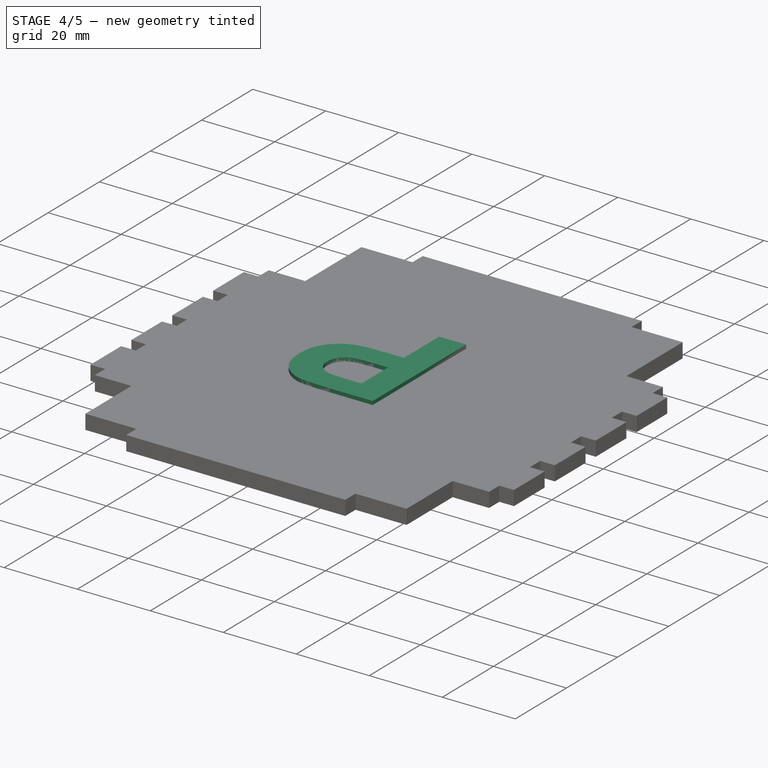
[diagram: stage 4 of 5 — iso view after this stage's code; geometry added in this stage tinted green]
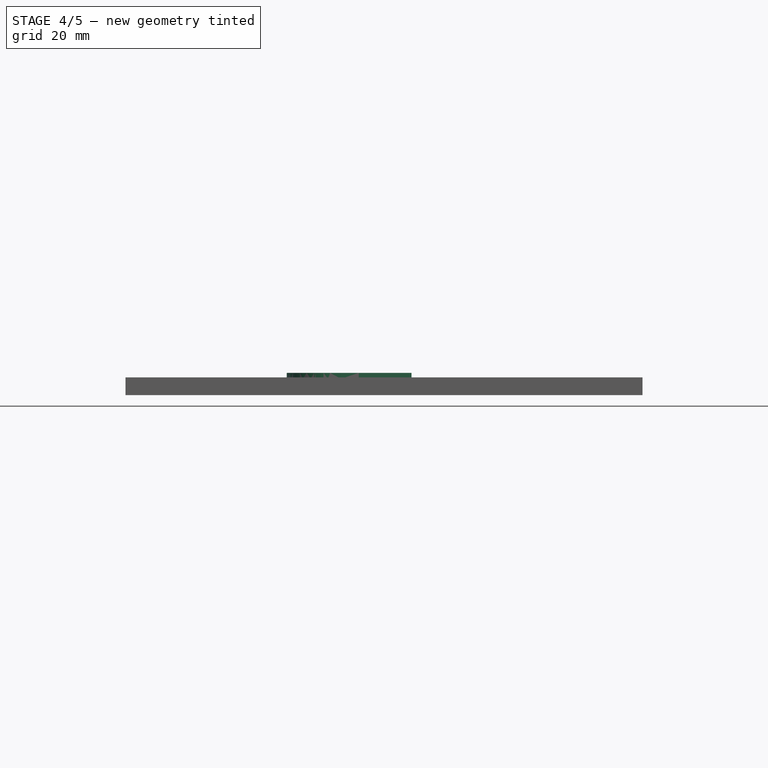
[diagram: stage 4 of 5 — front view after this stage's code; geometry added in this stage tinted green]
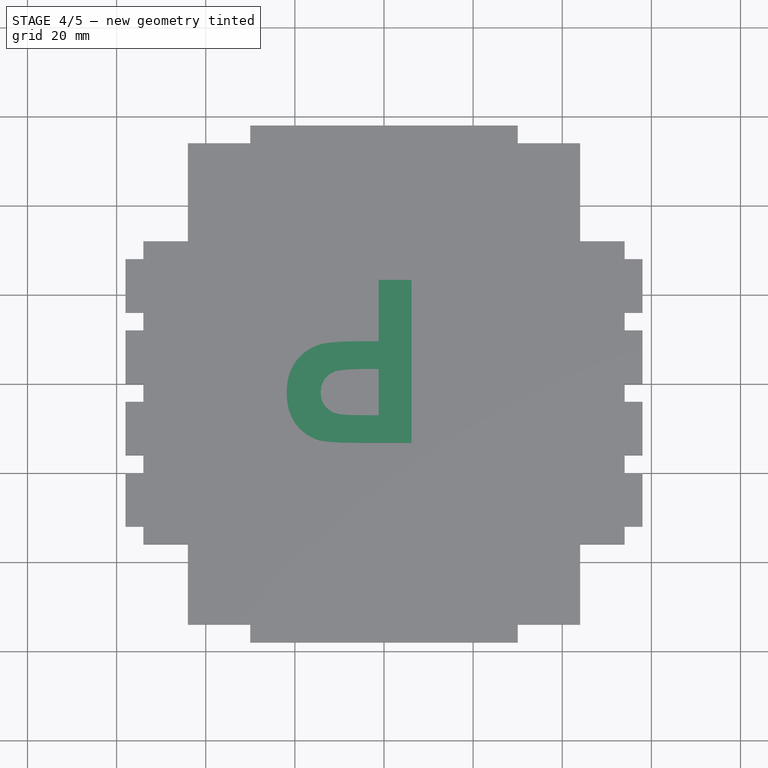
[diagram: stage 4 of 5 — top view after this stage's code; geometry added in this stage tinted green]
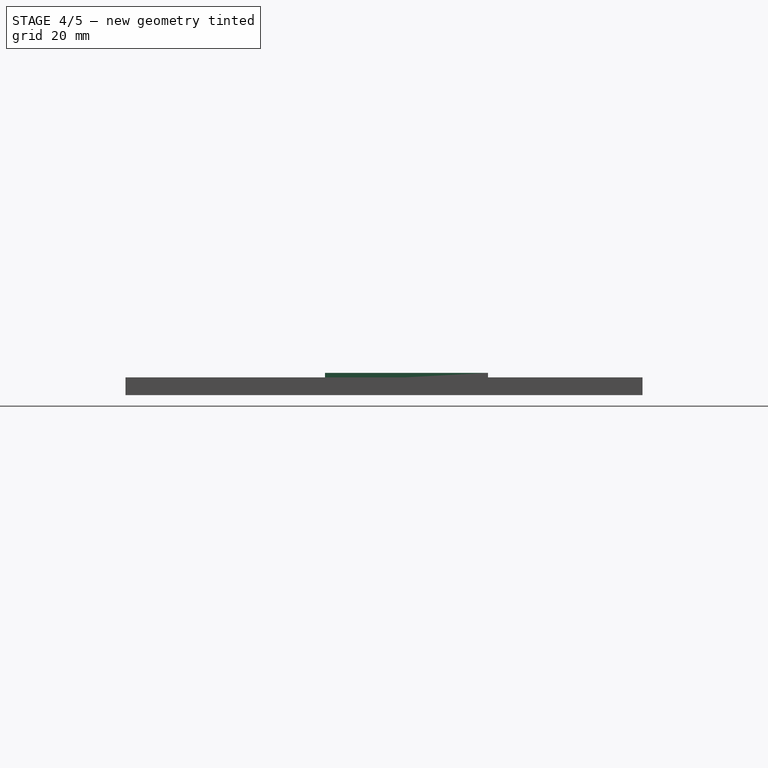
[diagram: stage 4 of 5 — right view after this stage's code; geometry added in this stage tinted green]
FEATURE [Sketcher::SketchObject] Sketch002
  sketch-geometry (56):
    g0: LineSegment StartX=-44 StartY=36 StartZ=0 EndX=-36 EndY=36 EndZ=0
    g1: LineSegment StartX=-36 StartY=36 StartZ=0 EndX=-36 EndY=40 EndZ=0
    g2: LineSegment StartX=-36 StartY=40 StartZ=0 EndX=-28 EndY=40 EndZ=0
    g3: LineSegment StartX=-28 StartY=40 StartZ=0 EndX=-28 EndY=36 EndZ=0
    g4: LineSegment StartX=-28 StartY=36 StartZ=0 EndX=-20 EndY=36 EndZ=0
    g5: LineSegment StartX=-20 StartY=36 StartZ=0 EndX=-20 EndY=40 EndZ=0
    g6: LineSegment StartX=-20 StartY=40 StartZ=0 EndX=-12 EndY=40 EndZ=0
    g7: LineSegment StartX=-12 StartY=40 StartZ=0 EndX=-12 EndY=36 EndZ=0
    g8: LineSegment StartX=-12 StartY=36 StartZ=0 EndX=-4 EndY=36 EndZ=0
    g9: LineSegment StartX=-4 StartY=36 StartZ=0 EndX=-4 EndY=40 EndZ=0
    g10: LineSegment StartX=-4 StartY=40 StartZ=0 EndX=4 EndY=40 EndZ=0
    g11: LineSegment StartX=4 StartY=40 StartZ=0 EndX=4 EndY=36 EndZ=0
    g12: LineSegment StartX=4 StartY=36 StartZ=0 EndX=12 EndY=36 EndZ=0
    g13: LineSegment StartX=12 StartY=36 StartZ=0 EndX=12 EndY=40 EndZ=0
    g14: LineSegment StartX=12 StartY=40 StartZ=0 EndX=20 EndY=40 EndZ=0
    g15: LineSegment StartX=20 StartY=40 StartZ=0 EndX=20 EndY=36 EndZ=0
    g16: LineSegment StartX=20 StartY=36 StartZ=0 EndX=28 EndY=36 EndZ=0
    g17: LineSegment StartX=28 StartY=36 StartZ=0 EndX=28 EndY=40 EndZ=0
    g18: LineSegment StartX=28 StartY=40 StartZ=0 EndX=36 EndY=40 EndZ=0
    g19: LineSegment StartX=36 StartY=40 StartZ=0 EndX=36 EndY=36 EndZ=0
    g20: LineSegment StartX=36 StartY=36 StartZ=0 EndX=44 EndY=36 EndZ=0
    g21: LineSegment StartX=-44 StartY=36 StartZ=0 EndX=-44 EndY=28 EndZ=0
    g22: LineSegment StartX=-44 StartY=28 StartZ=0 EndX=-48 EndY=28 EndZ=0
    g23: LineSegment StartX=-48 StartY=28 StartZ=0 EndX=-48 EndY=20 EndZ=0
    g24: LineSegment StartX=-48 StartY=20 StartZ=0 EndX=-44 EndY=20 EndZ=0
    g25: LineSegment StartX=-44 StartY=20 StartZ=0 EndX=-44 EndY=12 EndZ=0
    g26: LineSegment StartX=-44 StartY=12 StartZ=0 EndX=-48 EndY=12 EndZ=0
    g27: LineSegment StartX=-48 StartY=12 StartZ=0 EndX=-48 EndY=4 EndZ=0
    g28: LineSegment StartX=-48 StartY=4 StartZ=0 EndX=-44 EndY=4 EndZ=0
    g29: LineSegment StartX=-44 StartY=4 StartZ=0 EndX=-44 EndY=-4 EndZ=0
    g30: LineSegment StartX=-44 StartY=-4 StartZ=0 EndX=-48 EndY=-4 EndZ=0
    g31: LineSegment StartX=-48 StartY=-4 StartZ=0 EndX=-48 EndY=-12 EndZ=0
    g32: LineSegment StartX=-48 StartY=-12 StartZ=0 EndX=-44 EndY=-12 EndZ=0
    g33: LineSegment StartX=-44 StartY=-12 StartZ=0 EndX=-44 EndY=-20 EndZ=0
    g34: LineSegment StartX=-44 StartY=-20 StartZ=0 EndX=-48 EndY=-20 EndZ=0
    g35: LineSegment StartX=-48 StartY=-20 StartZ=0 EndX=-48 EndY=-28 EndZ=0
    g36: LineSegment StartX=-48 StartY=-28 StartZ=0 EndX=-30 EndY=-28 EndZ=0
    g37: LineSegment StartX=-30 StartY=-28 StartZ=0 EndX=-30 EndY=-24 EndZ=0
    g38: LineSegment StartX=-30 StartY=-24 StartZ=0 EndX=30 EndY=-24 EndZ=0
    g39: LineSegment StartX=30 StartY=-24 StartZ=0 EndX=30 EndY=-28 EndZ=0
    g40: LineSegment StartX=30 StartY=-28 StartZ=0 EndX=48 EndY=-28 EndZ=0
    g41: LineSegment StartX=48 StartY=-28 StartZ=0 EndX=48 EndY=-20 EndZ=0
    g42: LineSegment StartX=48 StartY=-20 StartZ=0 EndX=44 EndY=-20 EndZ=0
    g43: LineSegment StartX=44 StartY=-20 StartZ=0 EndX=44 EndY=-12 EndZ=0
    g44: LineSegment StartX=44 StartY=-12 StartZ=0 EndX=48 EndY=-12 EndZ=0
    g45: LineSegment StartX=48 StartY=-12 StartZ=0 EndX=48 EndY=-4 EndZ=0
    g46: LineSegment StartX=48 StartY=-4 StartZ=0 EndX=44 EndY=-4 EndZ=0
    g47: LineSegment StartX=44 StartY=-4 StartZ=0 EndX=44 EndY=4 EndZ=0
    g48: LineSegment StartX=44 StartY=4 StartZ=0 EndX=48 EndY=4 EndZ=0
    g49: LineSegment StartX=48 StartY=4 StartZ=0 EndX=48 EndY=12 EndZ=0
    g50: LineSegment StartX=48 StartY=12 StartZ=0 EndX=44 EndY=12 EndZ=0
    g51: LineSegment StartX=44 StartY=12 StartZ=0 EndX=44 EndY=20 EndZ=0
    g52: LineSegment StartX=44 StartY=20 StartZ=0 EndX=48 EndY=20 EndZ=0
    g53: LineSegment StartX=48 StartY=20 StartZ=0 EndX=48 EndY=28 EndZ=0
    g54: LineSegment StartX=48 StartY=28 StartZ=0 EndX=44 EndY=28 EndZ=0
    g55: LineSegment StartX=44 StartY=28 StartZ=0 EndX=44 EndY=36 EndZ=0
  constraints (168):
    c: Horizontal(g0)
    c: Coincident(g0,g1)
    c: Vertical(g1)
    c: Coincident(g1,g2)
    c: Horizontal(g2)
    c: Coincident(g2,g3)
    c: Vertical(g3)
    c: Coincident(g3,g4)
    c: Horizontal(g4)
    c: Coincident(g4,g5)
    c: Vertical(g5)
    c: Coincident(g5,g6)
    c: Coincident(g6,g7)
    c: Vertical(g7)
    c: Coincident(g7,g8)
    c: Horizontal(g8)
    c: Coincident(g8,g9)
    c: Vertical(g9)
    c: Coincident(g9,g10)
    c: Horizontal(g10)
    c: Coincident(g10,g11)
    c: Vertical(g11)
    c: Coincident(g11,g12)
    c: Horizontal(g12)
    c: Coincident(g12,g13)
    c: Vertical(g13)
    c: Coincident(g13,g14)
    c: Horizontal(g14)
    c: Coincident(g14,g15)
    c: Vertical(g15)
    c: Coincident(g15,g16)
    c: Horizontal(g16)
    c: Coincident(g16,g17)
    c: Vertical(g17)
    c: Coincident(g17,g18)
    c: Horizontal(g18)
    c: Coincident(g18,g19)
    c: Coincident(g19,g20)
    c: Horizontal(g20)
    c: Horizontal(g6)
    c: Equal(g18,g14)
    c: Equal(g14,g10)
    c: Equal(g10,g6)
    c: Equal(g6,g2)
    c: Vertical(g19)
    c: DistanceX(g2) = 8
    c: Equal(g7,g5)
    c: Equal(g5,g3)
    c: Equal(g3,g1)
    c: Equal(g1,g9)
    c: Equal(g9,g11)
    c: Equal(g11,g19)
    c: Equal(g19,g17)
    c: Equal(g17,g15)
    c: Equal(g15,g13)
    c: DistanceY(g1) = 4
    c: Equal(g4,g8)
    c: Equal(g8,g12)
    c: Equal(g12,g16)
    c: DistanceX(g4) = 8
    c: Equal(g0,g20)
    c: DistanceX(g20) = 8
    c: Coincident(g0,g21)
    c: Vertical(g21)
    c: Coincident(g21,g22)
    c: Coincident(g22,g23)
    c: Vertical(g23)
    c: Coincident(g23,g24)
    c: Coincident(g24,g25)
    c: Vertical(g25)
    c: Coincident(g25,g26)
    c: Coincident(g26,g27)
    c: Vertical(g27)
    c: Coincident(g27,g28)
    c: Coincident(g28,g29)
    c: Coincident(g29,g30)
    c: Horizontal(g30)
    c: Coincident(g30,g31)
    c: Vertical(g31)
    c: Coincident(g31,g32)
    c: Coincident(g32,g33)
    c: Vertical(g33)
    c: Coincident(g33,g34)
    c: Coincident(g34,g35)
    c: Vertical(g35)
    c: Coincident(g35,g36)
    c: Equal(g23,g27)
    c: Equal(g27,g31)
    c: Equal(g31,g35)
    c: Equal(g21,g25)
    c: Equal(g25,g29)
    c: Equal(g29,g33)
    c: Vertical(g29)
    c: Horizontal(g22)
    c: Horizontal(g24)
    c: Horizontal(g26)
    c: Horizontal(g28)
    c: Horizontal(g32)
    c: Horizontal(g34)
    c: Horizontal(g36)
    c: Equal(g22,g24)
    c: Equal(g24,g26)
    c: Equal(g26,g28)
    c: Equal(g28,g30)
    c: Equal(g30,g32)
    c: Equal(g32,g34)
    c: DistanceX(g22) = -4
    c: DistanceY(g23) = -8
    c: DistanceY(g21) = -8
    c: DistanceX(g36) = 18
    c: Coincident(g36,g37)
    c: Vertical(g37)
    c: Coincident(g37,g38)
    c: Horizontal(g38)
    c: Coincident(g38,g39)
    c: Vertical(g39)
    c: Coincident(g39,g40)
    c: Horizontal(g40)
    c: Equal(g39,g37)
    c: DistanceY(g37) = 4
    c: DistanceX(g38) = 60
    c: DistanceX(g40) = 18
    c: Coincident(g40,g41)
    c: Vertical(g41)
    c: Coincident(g41,g42)
    c: Coincident(g42,g43)
    c: Vertical(g43)
    c: Coincident(g43,g44)
    c: Horizontal(g44)
    c: Coincident(g44,g45)
    c: Vertical(g45)
    c: Coincident(g45,g46)
    c: Coincident(g46,g47)
    c: Vertical(g47)
    c: Coincident(g47,g48)
    c: Horizontal(g48)
    c: Coincident(g48,g49)
    c: Vertical(g49)
    c: Coincident(g49,g50)
    c: Horizontal(g50)
    c: Coincident(g50,g51)
    c: Vertical(g51)
    c: Coincident(g51,g52)
    c: Coincident(g52,g53)
    c: Vertical(g53)
    c: Coincident(g53,g54)
    c: Horizontal(g54)
    c: Coincident(g54,g55)
    c: Coincident(g55,g20)
    c: Vertical(g55)
    c: Horizontal(g42)
    c: Horizontal(g46)
    c: Horizontal(g52)
    c: Equal(g41,g45)
    c: Equal(g45,g49)
    c: Equal(g49,g53)
    c: Equal(g54,g52)
    c: Equal(g52,g50)
    c: Equal(g50,g48)
    c: Equal(g48,g46)
    c: Equal(g46,g44)
    c: Equal(g44,g42)
    c: Equal(g43,g47)
    c: Equal(g47,g51)
    c: Equal(g51,g55)
    c: DistanceY(g45) = 8
    c: Symmetric(g37,g38,g-2)
    c: Symmetric(g53,g40,g-1)
FEATURE [PartDesign::Pad] Pad001
  Length = 4
  Length2 = 100
  Sketch = -> Sketch002
  Type = 0
FEATURE [Part::Extrusion] Extrude
  Dir = (0,0,2)
  Solid = true
FEATURE [Part::Extrusion] Extrude001
  Dir = (0,0,2)
  Solid = true
FEATURE [Part::Cut] Cut  label="P"
  Base = -> Extrude001
  Placement = pos=(3,4,3) rot=(0,0,1;3.14159rad)
  Tool = -> Extrude
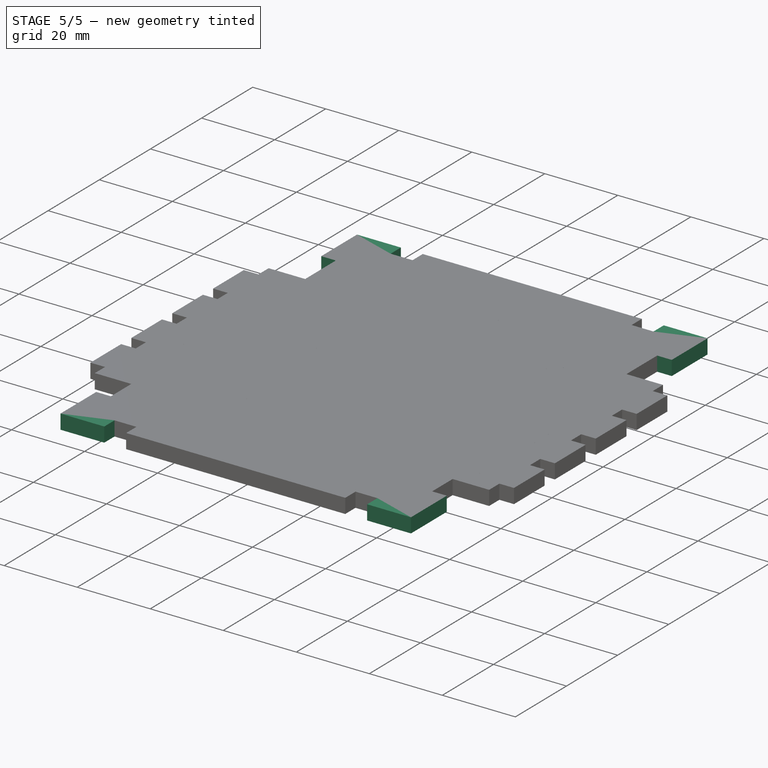
[diagram: stage 5 of 5 — iso view after this stage's code; geometry added in this stage tinted green]
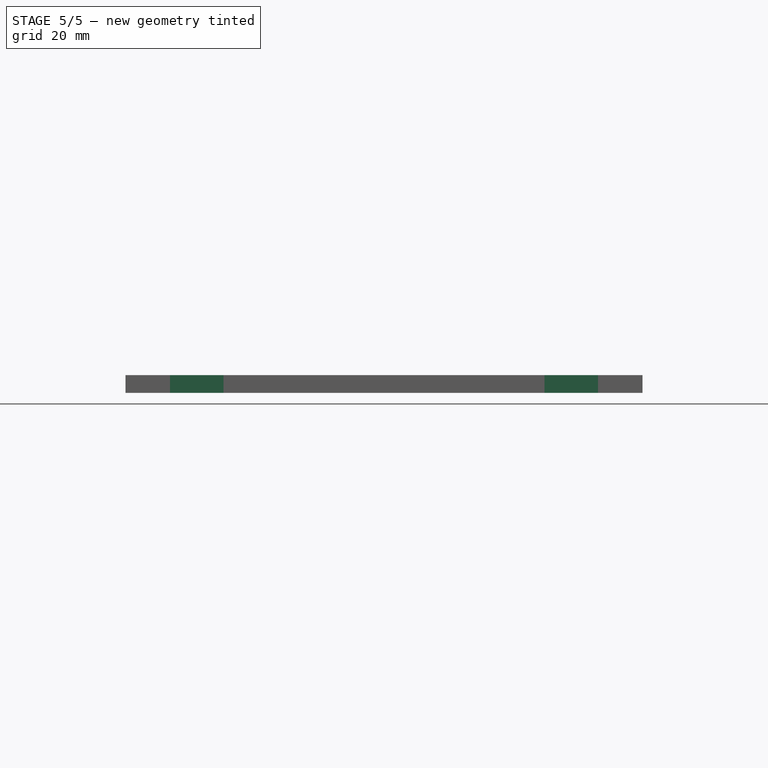
[diagram: stage 5 of 5 — front view after this stage's code; geometry added in this stage tinted green]
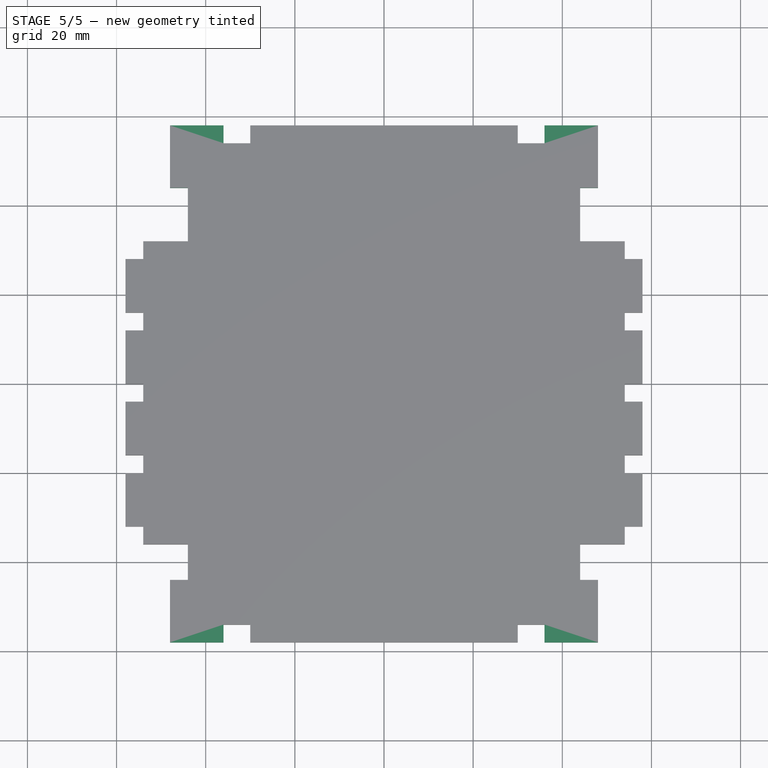
[diagram: stage 5 of 5 — top view after this stage's code; geometry added in this stage tinted green]
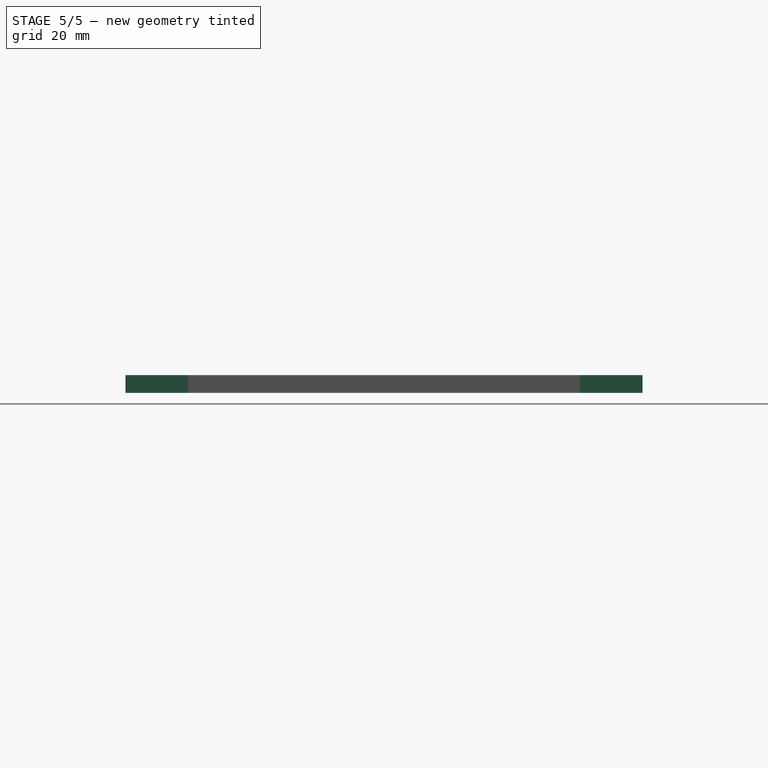
[diagram: stage 5 of 5 — right view after this stage's code; geometry added in this stage tinted green]
FEATURE [Sketcher::SketchObject] Sketch
  sketch-geometry (73):
    g0: LineSegment StartX=-36 StartY=58 StartZ=0 EndX=-36 EndY=54 EndZ=0
    g1: LineSegment StartX=-36 StartY=54 StartZ=0 EndX=-28 EndY=54 EndZ=0
    g2: LineSegment StartX=-28 StartY=54 StartZ=0 EndX=-28 EndY=58 EndZ=0
    g3: LineSegment StartX=-28 StartY=58 StartZ=0 EndX=-20 EndY=58 EndZ=0
    g4: LineSegment StartX=-20 StartY=58 StartZ=0 EndX=-20 EndY=54 EndZ=0
    g5: LineSegment StartX=-20 StartY=54 StartZ=0 EndX=-12 EndY=54 EndZ=0
    g6: LineSegment StartX=-12 StartY=54 StartZ=0 EndX=-12 EndY=58 EndZ=0
    g7: LineSegment StartX=-12 StartY=58 StartZ=0 EndX=-4 EndY=58 EndZ=0
    g8: LineSegment StartX=-4 StartY=58 StartZ=0 EndX=-4 EndY=54 EndZ=0
    g9: LineSegment StartX=-4 StartY=54 StartZ=0 EndX=4 EndY=54 EndZ=0
    g10: LineSegment StartX=4 StartY=54 StartZ=0 EndX=4 EndY=58 EndZ=0
    g11: LineSegment StartX=4 StartY=58 StartZ=0 EndX=12 EndY=58 EndZ=0
    g12: LineSegment StartX=12 StartY=58 StartZ=0 EndX=12 EndY=54 EndZ=0
    g13: LineSegment StartX=12 StartY=54 StartZ=0 EndX=20 EndY=54 EndZ=0
    g14: LineSegment StartX=20 StartY=54 StartZ=0 EndX=20 EndY=58 EndZ=0
    g15: LineSegment StartX=20 StartY=58 StartZ=0 EndX=28 EndY=58 EndZ=0
    g16: LineSegment StartX=28 StartY=58 StartZ=0 EndX=28 EndY=54 EndZ=0
    g17: LineSegment StartX=28 StartY=54 StartZ=0 EndX=36 EndY=54 EndZ=0
    g18: LineSegment StartX=36 StartY=54 StartZ=0 EndX=36 EndY=58 EndZ=0
    g19: LineSegment StartX=36 StartY=58 StartZ=0 EndX=48 EndY=58 EndZ=0
    g20: LineSegment StartX=48 StartY=58 StartZ=0 EndX=48 EndY=44 EndZ=0
    g21: LineSegment StartX=48 StartY=44 StartZ=0 EndX=27.5 EndY=44 EndZ=0
    g22: LineSegment StartX=27.5 StartY=44 StartZ=0 EndX=27.5 EndY=32 EndZ=0
    g23: LineSegment StartX=27.5 StartY=32 StartZ=0 EndX=30.5 EndY=32 EndZ=0
    g24: LineSegment StartX=30.5 StartY=32 StartZ=0 EndX=30.5 EndY=24 EndZ=0
    g25: LineSegment StartX=30.5 StartY=24 StartZ=0 EndX=27.5 EndY=24 EndZ=0
    g26: LineSegment StartX=27.5 StartY=24 StartZ=0 EndX=27.5 EndY=-11 EndZ=0
    g27: LineSegment StartX=-4 StartY=-58 StartZ=0 EndX=-12 EndY=-58 EndZ=0
    g28: LineSegment StartX=-12 StartY=-58 StartZ=0 EndX=-12 EndY=-54 EndZ=0
    g29: LineSegment StartX=-12 StartY=-54 StartZ=0 EndX=-20 EndY=-54 EndZ=0
    g30: LineSegment StartX=-20 StartY=-54 StartZ=0 EndX=-20 EndY=-58 EndZ=0
    g31: LineSegment StartX=-20 StartY=-58 StartZ=0 EndX=-28 EndY=-58 EndZ=0
    g32: LineSegment StartX=-28 StartY=-58 StartZ=0 EndX=-28 EndY=-54 EndZ=0
    g33: LineSegment StartX=-28 StartY=-54 StartZ=0 EndX=-36 EndY=-54 EndZ=0
    g34: LineSegment StartX=-36 StartY=-54 StartZ=0 EndX=-36 EndY=-58 EndZ=0
    g35: LineSegment StartX=-36 StartY=-58 StartZ=0 EndX=-48 EndY=-58 EndZ=0
    g36: LineSegment StartX=-48 StartY=-58 StartZ=0 EndX=-48 EndY=-44 EndZ=0
    g37: LineSegment StartX=-48 StartY=-44 StartZ=0 EndX=-27.5 EndY=-44 EndZ=0
    g38: LineSegment StartX=-27.5 StartY=-44 StartZ=0 EndX=-27.5 EndY=-26 EndZ=0
    g39: LineSegment StartX=-27.5 StartY=-26 StartZ=0 EndX=-30.5 EndY=-26 EndZ=0
    g40: LineSegment StartX=-30.5 StartY=-26 StartZ=0 EndX=-30.5 EndY=-15 EndZ=0
    g41: LineSegment StartX=-30.5 StartY=-15 StartZ=0 EndX=-19.5 EndY=-15 EndZ=0
    g42: LineSegment StartX=-19.5 StartY=-15 StartZ=0 EndX=-19.5 EndY=-11 EndZ=0
    g43: LineSegment StartX=-19.5 StartY=-11 StartZ=0 EndX=-27.5 EndY=-11 EndZ=0
    g44: LineSegment StartX=-27.5 StartY=-11 StartZ=0 EndX=-27.5 EndY=24 EndZ=0
    g45: LineSegment StartX=-27.5 StartY=24 StartZ=0 EndX=-30.5 EndY=24 EndZ=0
    g46: LineSegment StartX=-30.5 StartY=24 StartZ=0 EndX=-30.5 EndY=32 EndZ=0
    g47: LineSegment StartX=-30.5 StartY=32 StartZ=0 EndX=-27.5 EndY=32 EndZ=0
    g48: LineSegment StartX=-27.5 StartY=32 StartZ=0 EndX=-27.5 EndY=44 EndZ=0
    g49: LineSegment StartX=-27.5 StartY=44 StartZ=0 EndX=-48 EndY=44 EndZ=0
    g50: LineSegment StartX=-48 StartY=44 StartZ=0 EndX=-48 EndY=58 EndZ=0
    g51: LineSegment StartX=-36 StartY=58 StartZ=0 EndX=-48 EndY=58 EndZ=0
    g52: LineSegment StartX=-4 StartY=-58 StartZ=0 EndX=-4 EndY=-54 EndZ=0
    g53: LineSegment StartX=-4 StartY=-54 StartZ=0 EndX=4 EndY=-54 EndZ=0
    g54: LineSegment StartX=4 StartY=-54 StartZ=0 EndX=4 EndY=-58 EndZ=0
    g55: LineSegment StartX=4 StartY=-58 StartZ=0 EndX=12 EndY=-58 EndZ=0
    g56: LineSegment StartX=12 StartY=-58 StartZ=0 EndX=12 EndY=-54 EndZ=0
    g57: LineSegment StartX=12 StartY=-54 StartZ=0 EndX=20 EndY=-54 EndZ=0
    g58: LineSegment StartX=20 StartY=-54 StartZ=0 EndX=20 EndY=-58 EndZ=0
    g59: LineSegment StartX=20 StartY=-58 StartZ=0 EndX=28 EndY=-58 EndZ=0
    g60: LineSegment StartX=28 StartY=-58 StartZ=0 EndX=28 EndY=-54 EndZ=0
    g61: LineSegment StartX=28 StartY=-54 StartZ=0 EndX=36 EndY=-54 EndZ=0
    g62: LineSegment StartX=36 StartY=-54 StartZ=0 EndX=36 EndY=-58 EndZ=0
    g63: LineSegment StartX=36 StartY=-58 StartZ=0 EndX=48 EndY=-58 EndZ=0
    g64: LineSegment StartX=48 StartY=-58 StartZ=0 EndX=48 EndY=-44 EndZ=0
    g65: LineSegment StartX=48 StartY=-44 StartZ=0 EndX=27.5 EndY=-44 EndZ=0
    g66: LineSegment StartX=27.5 StartY=-44 StartZ=0 EndX=27.5 EndY=-26 EndZ=0
    g67: LineSegment StartX=27.5 StartY=-26 StartZ=0 EndX=30.5 EndY=-26 EndZ=0
    g68: LineSegment StartX=27.5 StartY=-11 StartZ=0 EndX=19.5 EndY=-11 EndZ=0
    g69: LineSegment StartX=19.5 StartY=-11 StartZ=0 EndX=19.5 EndY=-15 EndZ=0
    g70: LineSegment StartX=19.5 StartY=-15 StartZ=0 EndX=30.5 EndY=-15 EndZ=0
    g71: LineSegment StartX=30.5 StartY=-15 StartZ=0 EndX=30.5 EndY=-26 EndZ=0
    g72: LineSegment [constr] StartX=-27.5 StartY=-44 StartZ=0 EndX=27.5 EndY=-44 EndZ=0
  constraints (229):
    c: Vertical(g0)
    c: Coincident(g0,g1)
    c: Horizontal(g1)
    c: Coincident(g1,g2)
    c: Vertical(g2)
    c: Coincident(g2,g3)
    c: Horizontal(g3)
    c: Coincident(g3,g4)
    c: Coincident(g4,g5)
    c: Horizontal(g5)
    c: Coincident(g5,g6)
    c: Vertical(g6)
    c: Coincident(g6,g7)
    c: Horizontal(g7)
    c: Coincident(g7,g8)
    c: Vertical(g8)
    c: Coincident(g8,g9)
    c: Horizontal(g9)
    c: Coincident(g9,g10)
    c: Coincident(g10,g11)
    c: Horizontal(g11)
    c: Coincident(g11,g12)
    c: Coincident(g12,g13)
    c: Horizontal(g13)
    c: Coincident(g13,g14)
    c: Vertical(g14)
    c: Coincident(g14,g15)
    c: Horizontal(g15)
    c: Coincident(g15,g16)
    c: Coincident(g16,g17)
    c: Horizontal(g17)
    c: Coincident(g17,g18)
    c: Coincident(g18,g19)
    c: Horizontal(g19)
    c: Coincident(g19,g20)
    c: Vertical(g20)
    c: Coincident(g20,g21)
    c: Horizontal(g21)
    c: Coincident(g21,g22)
    c: Vertical(g22)
    c: Coincident(g22,g23)
    c: Horizontal(g23)
    c: Coincident(g23,g24)
    c: Vertical(g24)
    c: Coincident(g24,g25)
    c: Coincident(g25,g26)
    c: Vertical(g26)
    c: Horizontal(g27)
    c: Coincident(g27,g28)
    c: Vertical(g28)
    c: Coincident(g28,g29)
    c: Horizontal(g29)
    c: Coincident(g29,g30)
    c: Coincident(g30,g31)
    c: Horizontal(g31)
    c: Coincident(g31,g32)
    c: Vertical(g32)
    c: Coincident(g32,g33)
    c: Coincident(g33,g34)
    c: Vertical(g34)
    c: Coincident(g34,g35)
    c: Horizontal(g35)
    c: Coincident(g35,g36)
    c: Vertical(g36)
    c: Coincident(g36,g37)
    c: Coincident(g37,g38)
    c: Vertical(g38)
    c: Coincident(g38,g39)
    c: Coincident(g39,g40)
    c: Coincident(g40,g41)
    c: Horizontal(g41)
    c: Coincident(g41,g42)
    c: Coincident(g42,g43)
    c: Horizontal(g43)
    c: Coincident(g43,g44)
    c: Coincident(g44,g45)
    c: Coincident(g45,g46)
    c: Vertical(g46)
    c: Coincident(g46,g47)
    c: Coincident(g47,g48)
    c: Vertical(g48)
    c: Coincident(g48,g49)
    c: Horizontal(g49)
    c: Coincident(g49,g50)
    c: Vertical(g50)
    c: Coincident(g51,g0)
    c: Coincident(g51,g50)
    c: Horizontal(g51)
    c: Equal(g51,g35)
    c: Equal(g3,g7)
    c: Equal(g7,g11)
    c: Equal(g11,g15)
    c: Equal(g27,g31)
    c: Equal(g0,g2)
    c: Equal(g2,g4)
    c: Equal(g4,g6)
    c: Equal(g6,g8)
    c: Equal(g8,g10)
    c: Equal(g10,g12)
    c: Equal(g12,g14)
    c: Equal(g14,g16)
    c: Equal(g16,g18)
    c: Equal(g18,g34)
    c: Equal(g34,g32)
    c: Equal(g32,g30)
    c: Equal(g30,g28)
    c: Vertical(g16)
    c: Vertical(g18)
    c: Vertical(g4)
    c: Vertical(g30)
    c: Horizontal(g33)
    c: Equal(g1,g5)
    c: Equal(g5,g9)
    c: Equal(g9,g13)
    c: Equal(g13,g17)
    c: Vertical(g12)
    c: Vertical(g10)
    c: Equal(g27,g31)
    c: Horizontal(g37)
    c: Horizontal(g39)
    c: Horizontal(g25)
    c: Vertical(g44)
    c: Vertical(g42)
    c: Vertical(g40)
    c: DistanceX(g51) = -12
    c: DistanceX(g3) = 8
    c: DistanceX(g1) = 8
    c: Equal(g49,g21)
    c: DistanceX(g49) = -20.5
    c: DistanceY(g4) = -4
    c: DistanceY(g20) = -14
    c: Equal(g22,g48)
    c: DistanceY(g48) = 12
    c: DistanceY(g50) = 14
    c: Horizontal(g47)
    c: DistanceX(g47) = 3
    c: Equal(g47,g23)
    c: Equal(g25,g23)
    c: Equal(g23,g45)
    c: Equal(g45,g47)
    c: Equal(g46,g24)
    c: DistanceY(g46) = 8
    c: Horizontal(g45)
    c: Equal(g45,g25)
    c: Equal(g25,g23)
    c: Equal(g23,g47)
    c: Equal(g44,g26)
    c: DistanceY(g44) = 35
    c: DistanceX(g43) = -8
    c: DistanceY(g42) = 4
    c: DistanceX(g41) = 11
    c: DistanceX(g33) = -8
    c: DistanceY(g40) = 11
    c: DistanceX(g39) = -3
    c: DistanceY(g38) = 18
    c: DistanceX(g37) = 20.5
    c: DistanceX(g31) = -8
    c: Coincident(g27,g52)
    c: Coincident(g52,g53)
    c: Coincident(g53,g54)
    c: Coincident(g54,g55)
    c: Horizontal(g55)
    c: Coincident(g55,g56)
    c: Coincident(g56,g57)
    c: Coincident(g57,g58)
    c: Coincident(g58,g59)
    c: Coincident(g59,g60)
    c: Coincident(g60,g61)
    c: Horizontal(g61)
    c: Coincident(g61,g62)
    c: Coincident(g62,g63)
    c: Horizontal(g63)
    c: Coincident(g63,g64)
    c: Vertical(g64)
    c: Coincident(g64,g65)
    c: Horizontal(g65)
    c: Coincident(g65,g66)
    c: Vertical(g66)
    c: Coincident(g66,g67)
    c: Equal(g31,g27)
    c: Equal(g27,g55)
    c: Equal(g55,g59)
    c: Horizontal(g59)
    c: Equal(g33,g29)
    c: Equal(g29,g53)
    c: Equal(g53,g57)
    c: Equal(g57,g61)
    c: Vertical(g52)
    c: Vertical(g54)
    c: Vertical(g56)
    c: Vertical(g58)
    c: Vertical(g60)
    c: Vertical(g62)
    c: Horizontal(g53)
    c: Horizontal(g57)
    c: Equal(g30,g28)
    c: Equal(g28,g52)
    c: Equal(g52,g54)
    c: Equal(g54,g56)
    c: Equal(g56,g58)
    c: Equal(g58,g60)
    c: Equal(g60,g62)
    c: DistanceY(g36) = 14
    c: Equal(g36,g64)
    c: Equal(g37,g65)
    c: Equal(g35,g63)
    c: Equal(g38,g66)
    c: Equal(g67,g39)
    c: Horizontal(g67)
    c: Coincident(g26,g68)
    c: Horizontal(g68)
    c: Coincident(g68,g69)
    c: Vertical(g69)
    c: Coincident(g69,g70)
    c: Horizontal(g70)
    c: Coincident(g70,g71)
    c: Coincident(g71,g67)
    c: Equal(g40,g71)
    c: Vertical(g71)
    c: Equal(g41,g70)
    c: Equal(g69,g42)
    c: Equal(g43,g68)
    c: Equal(g21,g49)
    c: Equal(g19,g51)
    c: Coincident(g72,g37)
    c: Coincident(g72,g65)
    c: Horizontal(g72)
    c: Symmetric(g37,g65,g-2)
    c: Symmetric(g21,g65,g-1)
FEATURE [PartDesign::Pad] Pad
  Length = 4
  Length2 = 100
  Sketch = -> Sketch
  Type = 0
FEATURE [Sketcher::SketchObject] Sketch001
  ExternalGeometry = -> [Pad]
  Placement = pos=(0,0,4) rot=(0,0,1;0rad)
  Support = -> Pad [Face74]
  sketch-geometry (20):
    g0: LineSegment StartX=-4 StartY=-15 StartZ=0 EndX=4 EndY=-15 EndZ=0
    g1: LineSegment StartX=4 StartY=-15 StartZ=0 EndX=4 EndY=-11 EndZ=0
    g2: LineSegment StartX=4 StartY=-11 StartZ=0 EndX=-4 EndY=-11 EndZ=0
    g3: LineSegment StartX=-4 StartY=-11 StartZ=0 EndX=-4 EndY=-15 EndZ=0
    g4: LineSegment StartX=4 StartY=26 StartZ=0 EndX=-4 EndY=26 EndZ=0
    g5: LineSegment StartX=-4 StartY=26 StartZ=0 EndX=-4 EndY=22 EndZ=0
    g6: LineSegment StartX=-4 StartY=22 StartZ=0 EndX=4 EndY=22 EndZ=0
    g7: LineSegment StartX=4 StartY=22 StartZ=0 EndX=4 EndY=26 EndZ=0
    g8: LineSegment StartX=-12.5 StartY=-26 StartZ=0 EndX=-18.5 EndY=-26 EndZ=0
    g9: LineSegment StartX=-18.5 StartY=-26 StartZ=0 EndX=-18.5 EndY=-30 EndZ=0
    g10: LineSegment StartX=-18.5 StartY=-30 StartZ=0 EndX=-12.5 EndY=-30 EndZ=0
    g11: LineSegment StartX=-12.5 StartY=-30 StartZ=0 EndX=-12.5 EndY=-26 EndZ=0
    g12: LineSegment StartX=18.5 StartY=-26 StartZ=0 EndX=12.5 EndY=-26 EndZ=0
    g13: LineSegment StartX=12.5 StartY=-26 StartZ=0 EndX=12.5 EndY=-30 EndZ=0
    g14: LineSegment StartX=12.5 StartY=-30 StartZ=0 EndX=18.5 EndY=-30 EndZ=0
    g15: LineSegment StartX=18.5 StartY=-30 StartZ=0 EndX=18.5 EndY=-26 EndZ=0
    g16: Circle CenterX=-7.5 CenterY=-37 CenterZ=0 NormalX=0 NormalY=0 NormalZ=1 Radius=2
    g17: Circle CenterX=7.5 CenterY=-37 CenterZ=0 NormalX=0 NormalY=0 NormalZ=1 Radius=2
    g18: Circle CenterX=-7.5 CenterY=37 CenterZ=0 NormalX=0 NormalY=0 NormalZ=1 Radius=2
    g19: Circle CenterX=7.5 CenterY=37 CenterZ=0 NormalX=0 NormalY=0 NormalZ=1 Radius=2
  constraints (60):
    c: Coincident(g0,g1)
    c: Coincident(g1,g2)
    c: Coincident(g2,g3)
    c: Coincident(g3,g0)
    c: Horizontal(g0)
    c: Horizontal(g2)
    c: Vertical(g1)
    c: Vertical(g3)
    c: DistanceY(g3) = -4
    c: DistanceX(g2) = -8
    c: DistanceY(g-3,g0) = 0
    c: Symmetric(g2,g1,g-2)
    c: Coincident(g4,g5)
    c: Coincident(g5,g6)
    c: Coincident(g6,g7)
    c: Coincident(g7,g4)
    c: Horizontal(g4)
    c: Horizontal(g6)
    c: Vertical(g5)
    c: Vertical(g7)
    c: DistanceX(g6) = 8
    c: DistanceY(g5) = -4
    c: DistanceY(g5,g2) = -33
    c: Symmetric(g4,g4,g-2)
    c: Coincident(g8,g9)
    c: Coincident(g9,g10)
    c: Coincident(g10,g11)
    c: Coincident(g11,g8)
    c: Horizontal(g8)
    c: Horizontal(g10)
    c: Vertical(g9)
    c: Vertical(g11)
    c: DistanceX(g8) = -6
    c: DistanceY(g11) = 4
    c: Coincident(g12,g13)
    c: Coincident(g13,g14)
    c: Coincident(g14,g15)
    c: Coincident(g15,g12)
    c: Horizontal(g12)
    c: Horizontal(g14)
    c: Vertical(g13)
    c: Vertical(g15)
    c: DistanceX(g12) = -6
    c: DistanceY(g15) = 4
    c: DistanceX(g8,g-5) = -9
    c: DistanceY(g-5,g8) = 0
    c: DistanceX(g12,g-6) = 9
    c: DistanceY(g12,g-6) = 0
    c: Equal(g19,g18)
    c: Equal(g18,g16)
    c: Equal(g16,g17)
    c: Radius(g17) = 2
    c: DistanceX(g16,g-5) = -20
    c: DistanceY(g-5,g16) = 7
    c: DistanceY(g17,g-6) = -7
    c: DistanceX(g16,g17) = 15
    c: DistanceX(g18,g19) = 15
    c: DistanceX(g-7,g18) = 20
    c: DistanceY(g-7,g18) = -7
    c: DistanceY(g19,g-8) = 7
FEATURE [PartDesign::Pocket] Pocket  label="cubetto-4mm(1)"
  Length = 5
  Sketch = -> Sketch001
  Type = 0
FEATURE [Part::Cut] Cut001  label="cubetto-4mm(6)"
  Base = -> Pad001
  Tool = -> Cut
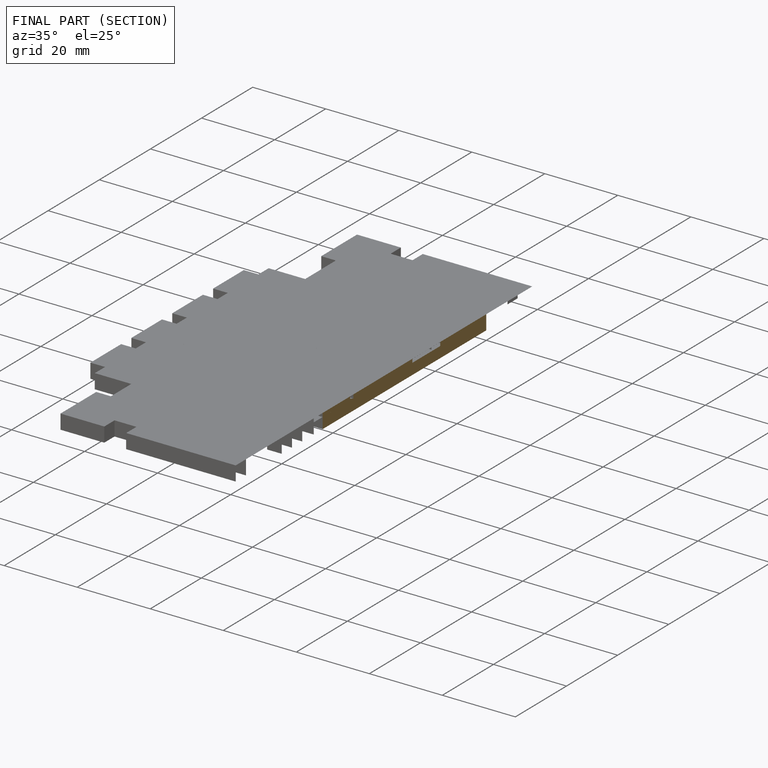
[diagram: finished part — half-section view (interior)]
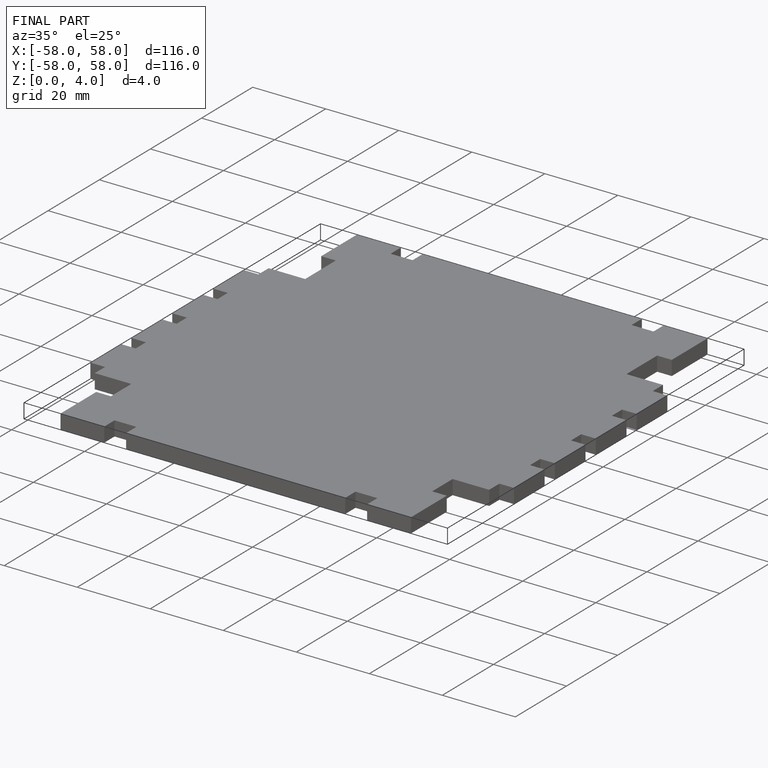
[diagram: finished part — iso view with bounding-box wireframe]
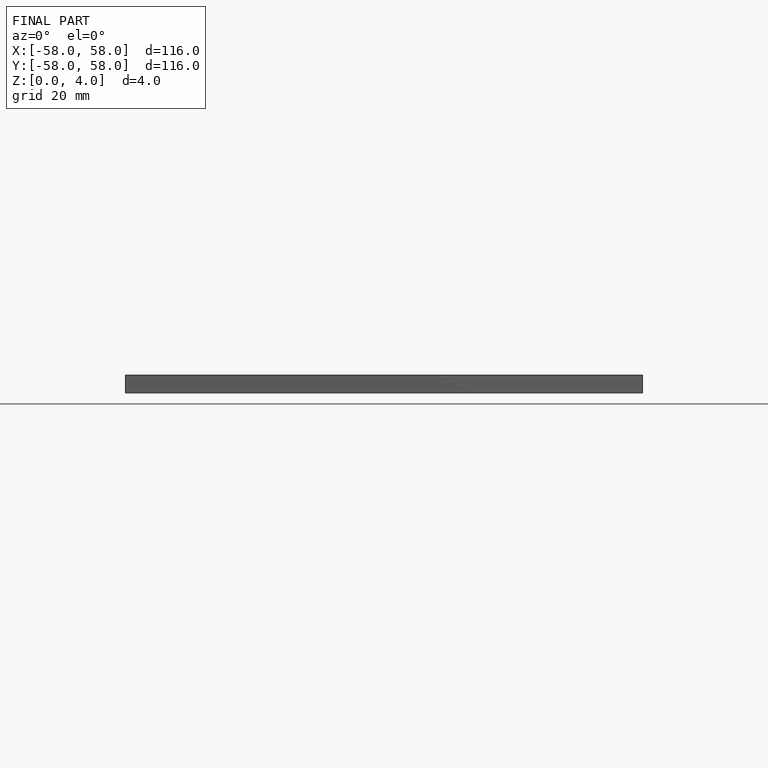
[diagram: finished part — front view with bounding-box wireframe]
